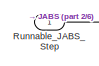
[diagram: root canvas - part 1/6, top center region]
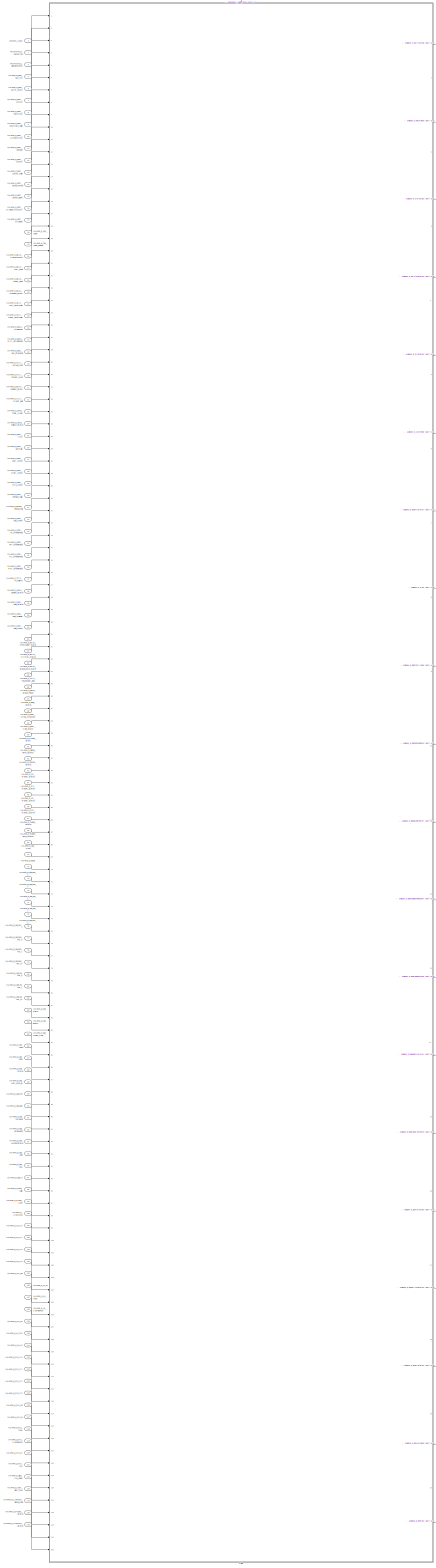
[diagram: root canvas - part 2/6, most of the canvas]
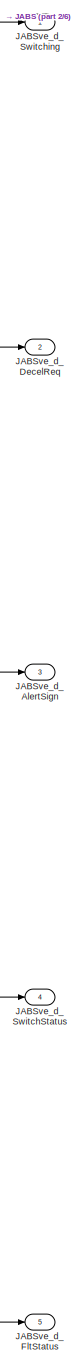
[diagram: root canvas - part 3/6, top right region]
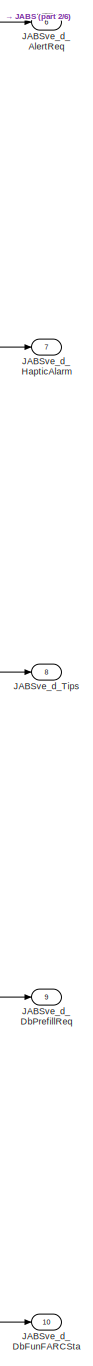
[diagram: root canvas - part 4/6, middle right region]
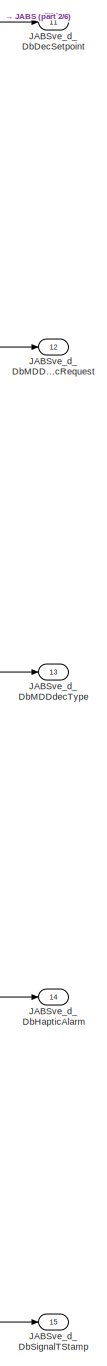
[diagram: root canvas - part 5/6, middle right region]
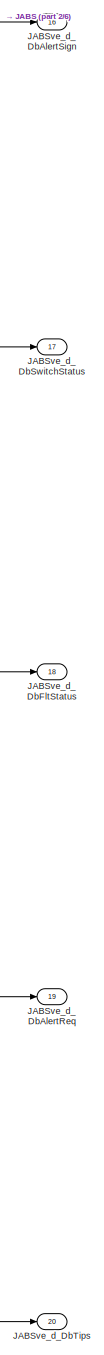
[diagram: root canvas - part 6/6, bottom right region]
MODEL slx_32ffdfda5d83
KIND model
CONFIG AbsTol = auto
CONFIG EnableMultiTasking = off
CONFIG FixedStep = 0.01
CONFIG MaxStep = auto
CONFIG MinStep = auto
CONFIG RelTol = 1e-3
CONFIG SampleTimeConstraint = Unconstrained
CONFIG Solver = FixedStepDiscrete
CONFIG SolverName = FixedStepDiscrete
CONFIG StartTime = 0.0
CONFIG StopTime = 10.0
BLOCK [Inport] FDMMve_d_JaFcnConf
  IconDisplay = Port number
  OutDataTypeStr = UInt16
  Port = 3
BLOCK [Inport] FDMMve_d_SignalTStamp
  IconDisplay = Port number
  OutDataTypeStr = UInt16
  Port = 4
BLOCK [Inport] IMAPva_d_obj_AEB
  IconDisplay = Port number
  OutDataTypeStr = UInt16
  Port = 95
  PortDimensions = 40
BLOCK [Inport] IMAPva_d_obj_BrakeLight
  IconDisplay = Port number
  OutDataTypeStr = UInt16
  Port = 93
  PortDimensions = 40
BLOCK [Inport] IMAPva_d_obj_ESA
  IconDisplay = Port number
  OutDataTypeStr = UInt16
  Port = 96
  PortDimensions = 40
BLOCK [Inport] IMAPva_d_obj_JA
  IconDisplay = Port number
  OutDataTypeStr = UInt16
  Port = 97
  PortDimensions = 40
BLOCK [Inport] IMAPva_d_obj_MotionStatus
  IconDisplay = Port number
  OutDataTypeStr = UInt16
  Port = 94
  PortDimensions = 40
BLOCK [Inport] IMAPva_d_obj_TurnLight
  IconDisplay = Port number
  OutDataTypeStr = UInt16
  Port = 92
  PortDimensions = 40
BLOCK [Inport] IMAPva_d_obj_cam_asso_id
  IconDisplay = Port number
  OutDataTypeStr = UInt16
  Port = 89
  PortDimensions = 40
BLOCK [Inport] IMAPva_d_obj_class
  IconDisplay = Port number
  OutDataTypeStr = UInt16
  Port = 86
  PortDimensions = 40
BLOCK [Inport] IMAPva_d_obj_fusion_type
  IconDisplay = Port number
  OutDataTypeStr = UInt16
  Port = 85
  PortDimensions = 40
BLOCK [Inport] IMAPva_d_obj_id
  IconDisplay = Port number
  OutDataTypeStr = UInt16
  Port = 70
  PortDimensions = 40
BLOCK [Inport] IMAPva_d_obj_lane
  IconDisplay = Port number
  OutDataTypeStr = UInt16
  Port = 87
  PortDimensions = 40
BLOCK [Inport] IMAPva_d_obj_status
  IconDisplay = Port number
  OutDataTypeStr = UInt16
  Port = 88
  PortDimensions = 40
BLOCK [Inport] IMAPva_g_obj_acc_x
  IconDisplay = Port number
  OutDataTypeStr = T_M_Nm_Float32
  Port = 75
  PortDimensions = 40
BLOCK [Inport] IMAPva_g_obj_acc_y
  IconDisplay = Port number
  OutDataTypeStr = T_M_Nm_Float32
  Port = 76
  PortDimensions = 40
BLOCK [Inport] IMAPva_g_obj_age
  IconDisplay = Port number
  OutDataTypeStr = T_M_Nm_Float32
  Port = 91
  PortDimensions = 40
BLOCK [Inport] IMAPva_g_obj_con
  IconDisplay = Port number
  OutDataTypeStr = T_M_Nm_Float32
  Port = 90
  PortDimensions = 40
BLOCK [Inport] IMAPva_g_obj_length
  IconDisplay = Port number
  OutDataTypeStr = T_M_Nm_Float32
  Port = 84
  PortDimensions = 40
BLOCK [Inport] IMAPva_g_obj_pos_var_x
  IconDisplay = Port number
  OutDataTypeStr = T_M_Nm_Float32
  Port = 77
  PortDimensions = 40
BLOCK [Inport] IMAPva_g_obj_pos_var_xy
  IconDisplay = Port number
  OutDataTypeStr = T_M_Nm_Float32
  Port = 79
  PortDimensions = 40
BLOCK [Inport] IMAPva_g_obj_pos_var_y
  IconDisplay = Port number
  OutDataTypeStr = T_M_Nm_Float32
  Port = 78
  PortDimensions = 40
BLOCK [Inport] IMAPva_g_obj_pos_x
  IconDisplay = Port number
  OutDataTypeStr = T_M_Nm_Float32
  Port = 71
  PortDimensions = 40
BLOCK [Inport] IMAPva_g_obj_pos_y
  IconDisplay = Port number
  OutDataTypeStr = T_M_Nm_Float32
  Port = 72
  PortDimensions = 40
BLOCK [Inport] IMAPva_g_obj_vel_var_x
  IconDisplay = Port number
  OutDataTypeStr = T_M_Nm_Float32
  Port = 80
  PortDimensions = 40
BLOCK [Inport] IMAPva_g_obj_vel_var_xy
  IconDisplay = Port number
  OutDataTypeStr = T_M_Nm_Float32
  Port = 82
  PortDimensions = 40
BLOCK [Inport] IMAPva_g_obj_vel_var_y
  IconDisplay = Port number
  OutDataTypeStr = T_M_Nm_Float32
  Port = 81
  PortDimensions = 40
BLOCK [Inport] IMAPva_g_obj_vel_x
  IconDisplay = Port number
  OutDataTypeStr = T_M_Nm_Float32
  Port = 73
  PortDimensions = 40
BLOCK [Inport] IMAPva_g_obj_vel_y
  IconDisplay = Port number
  OutDataTypeStr = T_M_Nm_Float32
  Port = 74
  PortDimensions = 40
BLOCK [Inport] IMAPva_g_obj_width
  IconDisplay = Port number
  OutDataTypeStr = T_M_Nm_Float32
  Port = 83
  PortDimensions = 40
BLOCK [Inport] IMAPve_d_ACU_Driver_Belt
  IconDisplay = Port number
  OutDataTypeStr = UInt16
  Port = 32
BLOCK [Inport] IMAPve_d_ACU_Passenger_Belt
  IconDisplay = Port number
  OutDataTypeStr = UInt16
  Port = 55
BLOCK [Inport] IMAPve_d_BCM_BrakeLamp_State
  IconDisplay = Port number
  OutDataTypeStr = UInt16
  Port = 54
BLOCK [Inport] IMAPve_d_BCM_CHMSL_Status
  IconDisplay = Port number
  OutDataTypeStr = UInt16
  Port = 53
BLOCK [Inport] IMAPve_d_BCM_FrontWiper_State
  IconDisplay = Port number
  OutDataTypeStr = UInt16
  Port = 52
BLOCK [Inport] IMAPve_d_BCM_HazardLamp
  IconDisplay = Port number
  OutDataTypeStr = UInt16
  Port = 20
BLOCK [Inport] IMAPve_d_BCM_Ignition_State
  IconDisplay = Port number
  OutDataTypeStr = UInt16
  Port = 31
BLOCK [Inport] IMAPve_d_BCM_Left_Light
  IconDisplay = Port number
  OutDataTypeStr = UInt16
  Port = 21
BLOCK [Inport] IMAPve_d_BCM_Opening_State
  IconDisplay = Port number
  OutDataTypeStr = UInt16
  Port = 23
BLOCK [Inport] IMAPve_d_BCM_Right_Light
  IconDisplay = Port number
  OutDataTypeStr = UInt16
  Port = 22
BLOCK [Inport] IMAPve_d_Brake_Pedal_Fault
  IconDisplay = Port number
  OutDataTypeStr = UInt16
  Port = 41
BLOCK [Inport] IMAPve_d_Camera_Signal_Fault
  IconDisplay = Port number
  OutDataTypeStr = UInt16
  Port = 124
BLOCK [Inport] IMAPve_d_Camera_Status
  IconDisplay = Port number
  OutDataTypeStr = UInt16
  Port = 126
BLOCK [Inport] IMAPve_d_ConsArea
  IconDisplay = Port number
  OutDataTypeStr = UInt16
  Port = 100
BLOCK [Inport] IMAPve_d_EMS_Brake_Pedal
  IconDisplay = Port number
  OutDataTypeStr = UInt16
  Port = 56
BLOCK [Inport] IMAPve_d_EMS_Engine_Status
  IconDisplay = Port number
  OutDataTypeStr = UInt16
  Port = 48
BLOCK [Inport] IMAPve_d_EPB_Status
  IconDisplay = Port number
  OutDataTypeStr = UInt16
  Port = 57
BLOCK [Inport] IMAPve_d_EPS_Error_State
  IconDisplay = Port number
  OutDataTypeStr = UInt16
  Port = 6
BLOCK [Inport] IMAPve_d_ESC_ABS_Active
  IconDisplay = Port number
  OutDataTypeStr = UInt16
  Port = 42
BLOCK [Inport] IMAPve_d_ESC_AEB_Active
  IconDisplay = Port number
  OutDataTypeStr = UInt16
  Port = 51
BLOCK [Inport] IMAPve_d_ESC_AEB_Available
  IconDisplay = Port number
  OutDataTypeStr = UInt16
  Port = 50
BLOCK [Inport] IMAPve_d_ESC_AEB_Status
  IconDisplay = Port number
  OutDataTypeStr = UInt16
  Port = 49
BLOCK [Inport] IMAPve_d_ESC_AlarmSig
  IconDisplay = Port number
  OutDataTypeStr = UInt16
  Port = 36
BLOCK [Inport] IMAPve_d_ESC_Drive_Direction
  IconDisplay = Port number
  OutDataTypeStr = UInt16
  Port = 58
BLOCK [Inport] IMAPve_d_ESC_ESC_Active
  IconDisplay = Port number
  OutDataTypeStr = UInt16
  Port = 37
BLOCK [Inport] IMAPve_d_ESC_FL_WheelPulVal
  IconDisplay = Port number
  OutDataTypeStr = UInt16
  Port = 43
BLOCK [Inport] IMAPve_d_ESC_FR_WheelPulVal
  IconDisplay = Port number
  OutDataTypeStr = UInt16
  Port = 44
BLOCK [Inport] IMAPve_d_ESC_Hold_State
  IconDisplay = Port number
  OutDataTypeStr = UInt16
  Port = 59
BLOCK [Inport] IMAPve_d_ESC_LonAcc_Valid
  IconDisplay = Port number
  OutDataTypeStr = UInt16
  Port = 13
BLOCK [Inport] IMAPve_d_ESC_MSR_Active
  IconDisplay = Port number
  OutDataTypeStr = UInt16
  Port = 38
BLOCK [Inport] IMAPve_d_ESC_OFF
  IconDisplay = Port number
  OutDataTypeStr = UInt16
  Port = 35
BLOCK [Inport] IMAPve_d_ESC_RL_WheelPulVal
  IconDisplay = Port number
  OutDataTypeStr = UInt16
  Port = 45
BLOCK [Inport] IMAPve_d_ESC_RR_WheelPulVal
  IconDisplay = Port number
  OutDataTypeStr = UInt16
  Port = 46
BLOCK [Inport] IMAPve_d_ESC_TCS_Active
  IconDisplay = Port number
  OutDataTypeStr = UInt16
  Port = 39
BLOCK [Inport] IMAPve_d_ESC_VehSpd_Valid
  IconDisplay = Port number
  OutDataTypeStr = UInt16
  Port = 40
BLOCK [Inport] IMAPve_d_ESC_Veh_Standstill
  IconDisplay = Port number
  OutDataTypeStr = UInt16
  Port = 28
BLOCK [Inport] IMAPve_d_ESC_YawRate_Valid
  IconDisplay = Port number
  OutDataTypeStr = UInt16
  Port = 9
BLOCK [Inport] IMAPve_d_Fusion_Status
  IconDisplay = Port number
  OutDataTypeStr = UInt16
  Port = 67
BLOCK [Inport] IMAPve_d_L0_LC
  IconDisplay = Port number
  OutDataTypeStr = UInt16
  Port = 111
BLOCK [Inport] IMAPve_d_L0_Q
  IconDisplay = Port number
  OutDataTypeStr = UInt16
  Port = 106
BLOCK [Inport] IMAPve_d_L0_Type
  IconDisplay = Port number
  OutDataTypeStr = UInt16
  Port = 107
BLOCK [Inport] IMAPve_d_LF_Radar_Status
  IconDisplay = Port number
  OutDataTypeStr = UInt16
  Port = 63
BLOCK [Inport] IMAPve_d_LR_Radar_Status
  IconDisplay = Port number
  OutDataTypeStr = UInt16
  Port = 65
BLOCK [Inport] IMAPve_d_Lane_Valid
  IconDisplay = Port number
  OutDataTypeStr = UInt16
  Port = 98
BLOCK [Inport] IMAPve_d_R0_Q
  IconDisplay = Port number
  OutDataTypeStr = UInt16
  Port = 117
BLOCK [Inport] IMAPve_d_R0_Type
  IconDisplay = Port number
  OutDataTypeStr = UInt16
  Port = 118
BLOCK [Inport] IMAPve_d_RF_Radar_Status
  IconDisplay = Port number
  OutDataTypeStr = UInt16
  Port = 64
BLOCK [Inport] IMAPve_d_RR_Radar_Status
  IconDisplay = Port number
  OutDataTypeStr = UInt16
  Port = 66
BLOCK [Inport] IMAPve_d_Radar_State
  IconDisplay = Port number
  OutDataTypeStr = UInt16
  Port = 60
BLOCK [Inport] IMAPve_d_Radar_Status
  IconDisplay = Port number
  OutDataTypeStr = UInt16
  Port = 125
BLOCK [Inport] IMAPve_d_Road_Type
  IconDisplay = Port number
  OutDataTypeStr = UInt16
  Port = 99
BLOCK [Inport] IMAPve_d_SCC_Left_SwitchSig
  IconDisplay = Port number
  OutDataTypeStr = UInt16
  Port = 24
BLOCK [Inport] IMAPve_d_SCC_Right_SwitchSig
  IconDisplay = Port number
  OutDataTypeStr = UInt16
  Port = 25
BLOCK [Inport] IMAPve_d_SWS_Failure_Status
  IconDisplay = Port number
  OutDataTypeStr = UInt16
  Port = 34
BLOCK [Inport] IMAPve_d_SWS_Fault_Code
  IconDisplay = Port number
  OutDataTypeStr = UInt16
  Port = 33
BLOCK [Inport] IMAPve_d_Sensor_Status
  IconDisplay = Port number
  OutDataTypeStr = UInt16
  Port = 62
BLOCK [Inport] IMAPve_d_Sign_ISA_Value
  IconDisplay = Port number
  OutDataTypeStr = UInt16
  Port = 122
BLOCK [Inport] IMAPve_d_Signal_Time_Stamp
  IconDisplay = Port number
  OutDataTypeStr = UInt16
  Port = 61
BLOCK [Inport] IMAPve_d_TCU_AT_Failure
  IconDisplay = Port number
  OutDataTypeStr = UInt16
  Port = 47
BLOCK [Inport] IMAPve_d_TCU_Actual_Gear
  IconDisplay = Port number
  OutDataTypeStr = UInt16
  Port = 29
BLOCK [Inport] IMAPve_d_TCU_Target_Gear
  IconDisplay = Port number
  OutDataTypeStr = UInt16
  Port = 30
BLOCK [Inport] IMAPve_d_TSR_Sign_Type
  IconDisplay = Port number
  OutDataTypeStr = UInt16
  Port = 123
BLOCK [Inport] IMAPve_d_obj_Num
  IconDisplay = Port number
  OutDataTypeStr = UInt16
  Port = 69
BLOCK [Inport] IMAPve_g_EMS_ACC_VirtualPedal
  IconDisplay = Port number
  OutDataTypeStr = T_M_Nm_Float32
  Port = 27
BLOCK [Inport] IMAPve_g_EMS_RealPedal
  IconDisplay = Port number
  OutDataTypeStr = T_M_Nm_Float32
  Port = 26
BLOCK [Inport] IMAPve_g_EPS_SW_Trq
  IconDisplay = Port number
  OutDataTypeStr = T_M_Nm_Float32
  Port = 5
BLOCK [Inport] IMAPve_g_ESC_Brake_Press
  IconDisplay = Port number
  OutDataTypeStr = T_M_Nm_Float32
  Port = 14
BLOCK [Inport] IMAPve_g_ESC_DySlope
  IconDisplay = Port number
  OutDataTypeStr = T_M_Nm_Float32
  Port = 17
BLOCK [Inport] IMAPve_g_ESC_DySlope_Accuracy
  IconDisplay = Port number
  OutDataTypeStr = T_M_Nm_Float32
  Port = 16
BLOCK [Inport] IMAPve_g_ESC_LatAcc
  IconDisplay = Port number
  OutDataTypeStr = T_M_Nm_Float32
  Port = 7
BLOCK [Inport] IMAPve_g_ESC_LonAcc
  IconDisplay = Port number
  OutDataTypeStr = T_M_Nm_Float32
  Port = 12
BLOCK [Inport] IMAPve_g_ESC_Static_Slope
  IconDisplay = Port number
  OutDataTypeStr = T_M_Nm_Float32
  Port = 15
BLOCK [Inport] IMAPve_g_ESC_UnYawRate
  IconDisplay = Port number
  OutDataTypeStr = T_M_Nm_Float32
  Port = 10
BLOCK [Inport] IMAPve_g_ESC_VehSpd
  IconDisplay = Port number
  OutDataTypeStr = T_M_Nm_Float32
  Port = 11
BLOCK [Inport] IMAPve_g_ESC_YawRate
  IconDisplay = Port number
  OutDataTypeStr = T_M_Nm_Float32
  Port = 8
BLOCK [Inport] IMAPve_g_Fusion_Time_Stamp
  IconDisplay = Port number
  OutDataTypeStr = T_M_Nm_Float32
  Port = 68
BLOCK [Inport] IMAPve_g_L0_C0
  IconDisplay = Port number
  OutDataTypeStr = T_M_Nm_Float32
  Port = 101
BLOCK [Inport] IMAPve_g_L0_C1
  IconDisplay = Port number
  OutDataTypeStr = T_M_Nm_Float32
  Port = 102
BLOCK [Inport] IMAPve_g_L0_C2
  IconDisplay = Port number
  OutDataTypeStr = T_M_Nm_Float32
  Port = 103
BLOCK [Inport] IMAPve_g_L0_C3
  IconDisplay = Port number
  OutDataTypeStr = T_M_Nm_Float32
  Port = 104
BLOCK [Inport] IMAPve_g_L0_Confidence
  IconDisplay = Port number
  OutDataTypeStr = T_M_Nm_Float32
  Port = 108
BLOCK [Inport] IMAPve_g_L0_TLC
  IconDisplay = Port number
  OutDataTypeStr = T_M_Nm_Float32
  Port = 110
BLOCK [Inport] IMAPve_g_L0_VR
  IconDisplay = Port number
  OutDataTypeStr = T_M_Nm_Float32
  Port = 105
BLOCK [Inport] IMAPve_g_L0_W
  IconDisplay = Port number
  OutDataTypeStr = T_M_Nm_Float32
  Port = 109
BLOCK [Inport] IMAPve_g_R0_C0
  IconDisplay = Port number
  OutDataTypeStr = T_M_Nm_Float32
  Port = 112
BLOCK [Inport] IMAPve_g_R0_C1
  IconDisplay = Port number
  OutDataTypeStr = T_M_Nm_Float32
  Port = 113
BLOCK [Inport] IMAPve_g_R0_C2
  IconDisplay = Port number
  OutDataTypeStr = T_M_Nm_Float32
  Port = 114
BLOCK [Inport] IMAPve_g_R0_C3
  IconDisplay = Port number
  OutDataTypeStr = T_M_Nm_Float32
  Port = 115
BLOCK [Inport] IMAPve_g_R0_Confidence
  IconDisplay = Port number
  OutDataTypeStr = T_M_Nm_Float32
  Port = 119
BLOCK [Inport] IMAPve_g_R0_TLC
  IconDisplay = Port number
  OutDataTypeStr = T_M_Nm_Float32
  Port = 121
BLOCK [Inport] IMAPve_g_R0_VR
  IconDisplay = Port number
  OutDataTypeStr = T_M_Nm_Float32
  Port = 116
BLOCK [Inport] IMAPve_g_R0_W
  IconDisplay = Port number
  OutDataTypeStr = T_M_Nm_Float32
  Port = 120
BLOCK [Inport] IMAPve_g_SW_Angle
  IconDisplay = Port number
  OutDataTypeStr = T_M_Nm_Float32
  Port = 18
BLOCK [Inport] IMAPve_g_SW_Angle_Speed
  IconDisplay = Port number
  OutDataTypeStr = T_M_Nm_Float32
  Port = 19
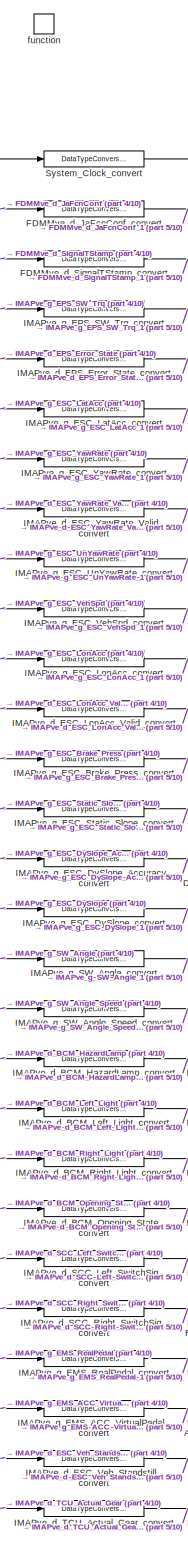
[diagram: JABS - part 1/10, top left region]
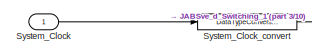
[diagram: JABS - part 2/10, top left region]
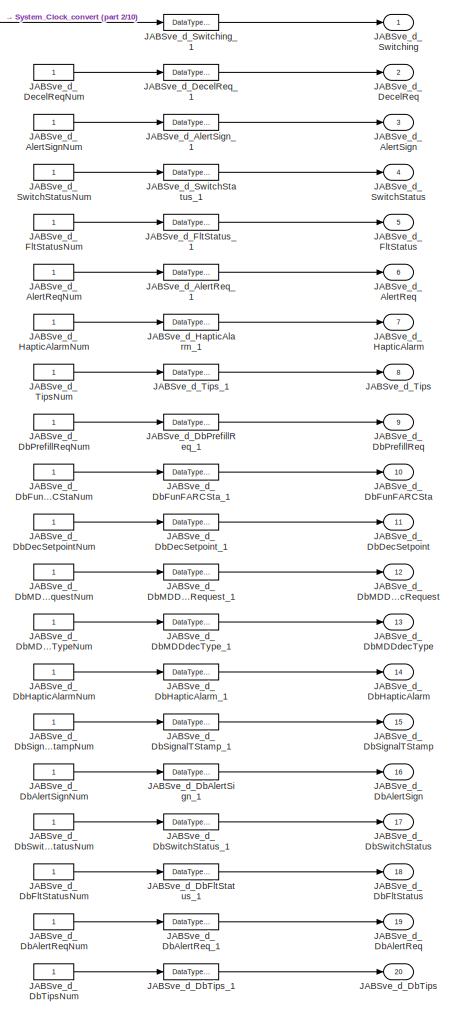
[diagram: JABS - part 3/10, top right region]
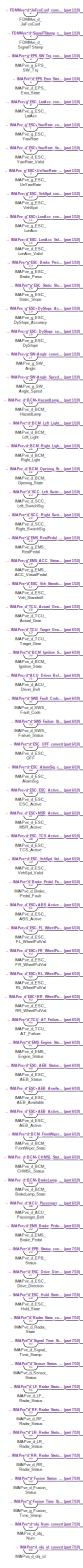
[diagram: JABS - part 4/10, top left region]
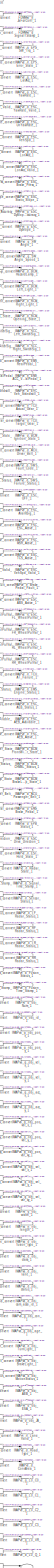
[diagram: JABS - part 5/10, left side, full height]
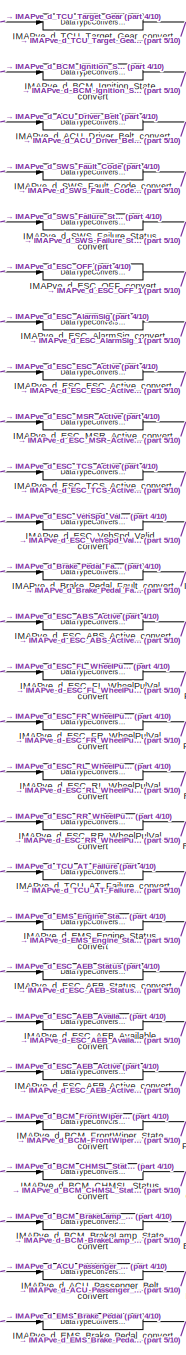
[diagram: JABS - part 6/10, middle left region]
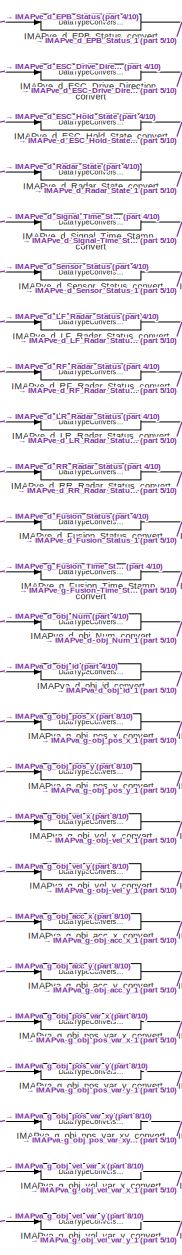
[diagram: JABS - part 7/10, middle left region]
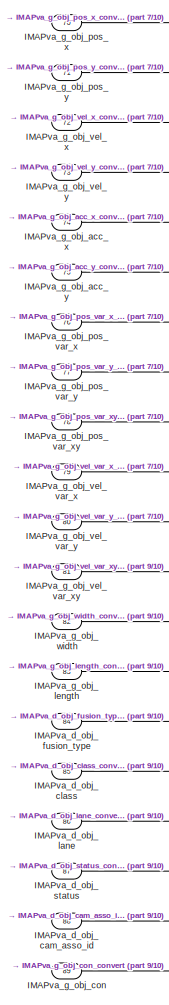
[diagram: JABS - part 8/10, middle left region]
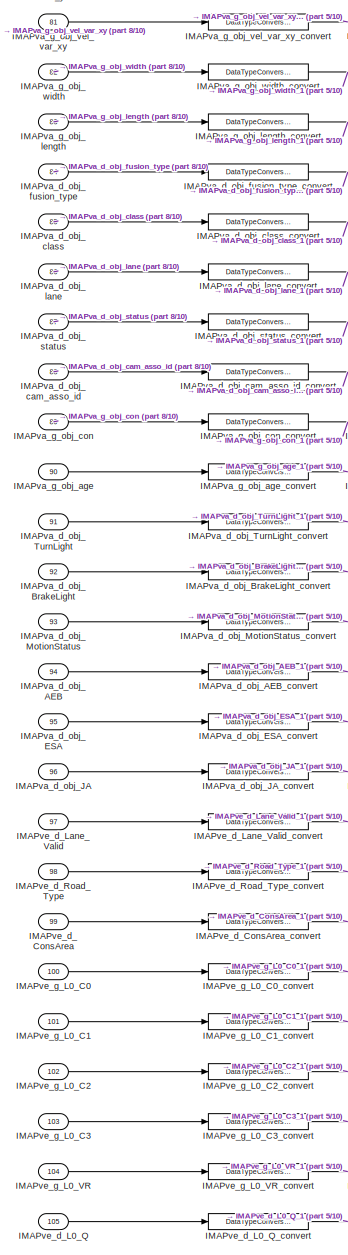
[diagram: JABS - part 9/10, bottom left region]
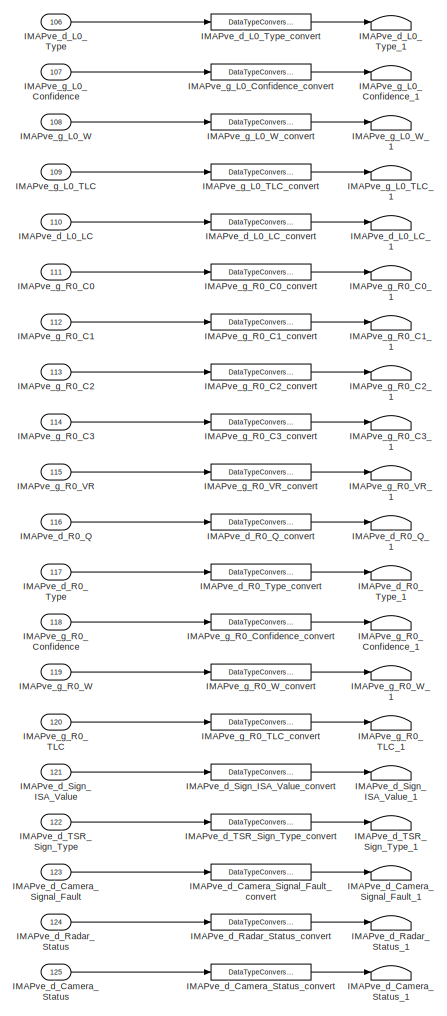
[diagram: JABS - part 10/10, bottom left region]
BLOCK [SubSystem] JABS
  Ports = [125, 20, 0, 1]
  RequestExecContextInheritance = off
  TreatAsAtomicUnit = on
BLOCK [Inport] JABS/FDMMve_d_JaFcnConf
  IconDisplay = Port number
  OutDataTypeStr = UInt16
  Port = 2
BLOCK [Terminator] JABS/FDMMve_d_JaFcnConf_1
BLOCK [DataTypeConversion] JABS/FDMMve_d_JaFcnConf_convert
  OutDataTypeStr = uint8
  RndMeth = Floor
  SaturateOnIntegerOverflow = off
BLOCK [Inport] JABS/FDMMve_d_SignalTStamp
  IconDisplay = Port number
  OutDataTypeStr = UInt16
  Port = 3
BLOCK [Terminator] JABS/FDMMve_d_SignalTStamp_1
BLOCK [DataTypeConversion] JABS/FDMMve_d_SignalTStamp_convert
  OutDataTypeStr = uint8
  RndMeth = Floor
  SaturateOnIntegerOverflow = off
BLOCK [Inport] JABS/IMAPva_d_obj_AEB
  IconDisplay = Port number
  OutDataTypeStr = UInt16
  Port = 94
  PortDimensions = 40
BLOCK [Terminator] JABS/IMAPva_d_obj_AEB_1
BLOCK [DataTypeConversion] JABS/IMAPva_d_obj_AEB_convert
  OutDataTypeStr = uint8
  RndMeth = Floor
  SaturateOnIntegerOverflow = off
BLOCK [Inport] JABS/IMAPva_d_obj_BrakeLight
  IconDisplay = Port number
  OutDataTypeStr = UInt16
  Port = 92
  PortDimensions = 40
BLOCK [Terminator] JABS/IMAPva_d_obj_BrakeLight_1
BLOCK [DataTypeConversion] JABS/IMAPva_d_obj_BrakeLight_convert
  OutDataTypeStr = uint8
  RndMeth = Floor
  SaturateOnIntegerOverflow = off
BLOCK [Inport] JABS/IMAPva_d_obj_ESA
  IconDisplay = Port number
  OutDataTypeStr = UInt16
  Port = 95
  PortDimensions = 40
BLOCK [Terminator] JABS/IMAPva_d_obj_ESA_1
BLOCK [DataTypeConversion] JABS/IMAPva_d_obj_ESA_convert
  OutDataTypeStr = uint8
  RndMeth = Floor
  SaturateOnIntegerOverflow = off
BLOCK [Inport] JABS/IMAPva_d_obj_JA
  IconDisplay = Port number
  OutDataTypeStr = UInt16
  Port = 96
  PortDimensions = 40
BLOCK [Terminator] JABS/IMAPva_d_obj_JA_1
BLOCK [DataTypeConversion] JABS/IMAPva_d_obj_JA_convert
  OutDataTypeStr = uint8
  RndMeth = Floor
  SaturateOnIntegerOverflow = off
BLOCK [Inport] JABS/IMAPva_d_obj_MotionStatus
  IconDisplay = Port number
  OutDataTypeStr = UInt16
  Port = 93
  PortDimensions = 40
BLOCK [Terminator] JABS/IMAPva_d_obj_MotionStatus_1
BLOCK [DataTypeConversion] JABS/IMAPva_d_obj_MotionStatus_convert
  OutDataTypeStr = uint8
  RndMeth = Floor
  SaturateOnIntegerOverflow = off
BLOCK [Inport] JABS/IMAPva_d_obj_TurnLight
  IconDisplay = Port number
  OutDataTypeStr = UInt16
  Port = 91
  PortDimensions = 40
BLOCK [Terminator] JABS/IMAPva_d_obj_TurnLight_1
BLOCK [DataTypeConversion] JABS/IMAPva_d_obj_TurnLight_convert
  OutDataTypeStr = uint8
  RndMeth = Floor
  SaturateOnIntegerOverflow = off
BLOCK [Inport] JABS/IMAPva_d_obj_cam_asso_id
  IconDisplay = Port number
  OutDataTypeStr = UInt16
  Port = 88
  PortDimensions = 40
BLOCK [Terminator] JABS/IMAPva_d_obj_cam_asso_id_1
BLOCK [DataTypeConversion] JABS/IMAPva_d_obj_cam_asso_id_convert
  OutDataTypeStr = uint8
  RndMeth = Floor
  SaturateOnIntegerOverflow = off
BLOCK [Inport] JABS/IMAPva_d_obj_class
  IconDisplay = Port number
  OutDataTypeStr = UInt16
  Port = 85
  PortDimensions = 40
BLOCK [Terminator] JABS/IMAPva_d_obj_class_1
BLOCK [DataTypeConversion] JABS/IMAPva_d_obj_class_convert
  OutDataTypeStr = uint8
  RndMeth = Floor
  SaturateOnIntegerOverflow = off
BLOCK [Inport] JABS/IMAPva_d_obj_fusion_type
  IconDisplay = Port number
  OutDataTypeStr = UInt16
  Port = 84
  PortDimensions = 40
BLOCK [Terminator] JABS/IMAPva_d_obj_fusion_type_1
BLOCK [DataTypeConversion] JABS/IMAPva_d_obj_fusion_type_convert
  OutDataTypeStr = uint8
  RndMeth = Floor
  SaturateOnIntegerOverflow = off
BLOCK [Inport] JABS/IMAPva_d_obj_id
  IconDisplay = Port number
  OutDataTypeStr = UInt16
  Port = 69
  PortDimensions = 40
BLOCK [Terminator] JABS/IMAPva_d_obj_id_1
BLOCK [DataTypeConversion] JABS/IMAPva_d_obj_id_convert
  OutDataTypeStr = uint8
  RndMeth = Floor
  SaturateOnIntegerOverflow = off
BLOCK [Inport] JABS/IMAPva_d_obj_lane
  IconDisplay = Port number
  OutDataTypeStr = UInt16
  Port = 86
  PortDimensions = 40
BLOCK [Terminator] JABS/IMAPva_d_obj_lane_1
BLOCK [DataTypeConversion] JABS/IMAPva_d_obj_lane_convert
  OutDataTypeStr = uint8
  RndMeth = Floor
  SaturateOnIntegerOverflow = off
BLOCK [Inport] JABS/IMAPva_d_obj_status
  IconDisplay = Port number
  OutDataTypeStr = UInt16
  Port = 87
  PortDimensions = 40
BLOCK [Terminator] JABS/IMAPva_d_obj_status_1
BLOCK [DataTypeConversion] JABS/IMAPva_d_obj_status_convert
  OutDataTypeStr = uint8
  RndMeth = Floor
  SaturateOnIntegerOverflow = off
BLOCK [Inport] JABS/IMAPva_g_obj_acc_x
  IconDisplay = Port number
  OutDataTypeStr = T_M_Nm_Float32
  Port = 74
  PortDimensions = 40
BLOCK [Terminator] JABS/IMAPva_g_obj_acc_x_1
BLOCK [DataTypeConversion] JABS/IMAPva_g_obj_acc_x_convert
  OutDataTypeStr = uint8
  RndMeth = Floor
  SaturateOnIntegerOverflow = off
BLOCK [Inport] JABS/IMAPva_g_obj_acc_y
  IconDisplay = Port number
  OutDataTypeStr = T_M_Nm_Float32
  Port = 75
  PortDimensions = 40
BLOCK [Terminator] JABS/IMAPva_g_obj_acc_y_1
BLOCK [DataTypeConversion] JABS/IMAPva_g_obj_acc_y_convert
  OutDataTypeStr = uint8
  RndMeth = Floor
  SaturateOnIntegerOverflow = off
BLOCK [Inport] JABS/IMAPva_g_obj_age
  IconDisplay = Port number
  OutDataTypeStr = T_M_Nm_Float32
  Port = 90
  PortDimensions = 40
BLOCK [Terminator] JABS/IMAPva_g_obj_age_1
BLOCK [DataTypeConversion] JABS/IMAPva_g_obj_age_convert
  OutDataTypeStr = uint8
  RndMeth = Floor
  SaturateOnIntegerOverflow = off
BLOCK [Inport] JABS/IMAPva_g_obj_con
  IconDisplay = Port number
  OutDataTypeStr = T_M_Nm_Float32
  Port = 89
  PortDimensions = 40
BLOCK [Terminator] JABS/IMAPva_g_obj_con_1
BLOCK [DataTypeConversion] JABS/IMAPva_g_obj_con_convert
  OutDataTypeStr = uint8
  RndMeth = Floor
  SaturateOnIntegerOverflow = off
BLOCK [Inport] JABS/IMAPva_g_obj_length
  IconDisplay = Port number
  OutDataTypeStr = T_M_Nm_Float32
  Port = 83
  PortDimensions = 40
BLOCK [Terminator] JABS/IMAPva_g_obj_length_1
BLOCK [DataTypeConversion] JABS/IMAPva_g_obj_length_convert
  OutDataTypeStr = uint8
  RndMeth = Floor
  SaturateOnIntegerOverflow = off
BLOCK [Inport] JABS/IMAPva_g_obj_pos_var_x
  IconDisplay = Port number
  OutDataTypeStr = T_M_Nm_Float32
  Port = 76
  PortDimensions = 40
BLOCK [Terminator] JABS/IMAPva_g_obj_pos_var_x_1
BLOCK [DataTypeConversion] JABS/IMAPva_g_obj_pos_var_x_convert
  OutDataTypeStr = uint8
  RndMeth = Floor
  SaturateOnIntegerOverflow = off
BLOCK [Inport] JABS/IMAPva_g_obj_pos_var_xy
  IconDisplay = Port number
  OutDataTypeStr = T_M_Nm_Float32
  Port = 78
  PortDimensions = 40
BLOCK [Terminator] JABS/IMAPva_g_obj_pos_var_xy_1
BLOCK [DataTypeConversion] JABS/IMAPva_g_obj_pos_var_xy_convert
  OutDataTypeStr = uint8
  RndMeth = Floor
  SaturateOnIntegerOverflow = off
BLOCK [Inport] JABS/IMAPva_g_obj_pos_var_y
  IconDisplay = Port number
  OutDataTypeStr = T_M_Nm_Float32
  Port = 77
  PortDimensions = 40
BLOCK [Terminator] JABS/IMAPva_g_obj_pos_var_y_1
BLOCK [DataTypeConversion] JABS/IMAPva_g_obj_pos_var_y_convert
  OutDataTypeStr = uint8
  RndMeth = Floor
  SaturateOnIntegerOverflow = off
BLOCK [Inport] JABS/IMAPva_g_obj_pos_x
  IconDisplay = Port number
  OutDataTypeStr = T_M_Nm_Float32
  Port = 70
  PortDimensions = 40
BLOCK [Terminator] JABS/IMAPva_g_obj_pos_x_1
BLOCK [DataTypeConversion] JABS/IMAPva_g_obj_pos_x_convert
  OutDataTypeStr = uint8
  RndMeth = Floor
  SaturateOnIntegerOverflow = off
BLOCK [Inport] JABS/IMAPva_g_obj_pos_y
  IconDisplay = Port number
  OutDataTypeStr = T_M_Nm_Float32
  Port = 71
  PortDimensions = 40
BLOCK [Terminator] JABS/IMAPva_g_obj_pos_y_1
BLOCK [DataTypeConversion] JABS/IMAPva_g_obj_pos_y_convert
  OutDataTypeStr = uint8
  RndMeth = Floor
  SaturateOnIntegerOverflow = off
BLOCK [Inport] JABS/IMAPva_g_obj_vel_var_x
  IconDisplay = Port number
  OutDataTypeStr = T_M_Nm_Float32
  Port = 79
  PortDimensions = 40
BLOCK [Terminator] JABS/IMAPva_g_obj_vel_var_x_1
BLOCK [DataTypeConversion] JABS/IMAPva_g_obj_vel_var_x_convert
  OutDataTypeStr = uint8
  RndMeth = Floor
  SaturateOnIntegerOverflow = off
BLOCK [Inport] JABS/IMAPva_g_obj_vel_var_xy
  IconDisplay = Port number
  OutDataTypeStr = T_M_Nm_Float32
  Port = 81
  PortDimensions = 40
BLOCK [Terminator] JABS/IMAPva_g_obj_vel_var_xy_1
BLOCK [DataTypeConversion] JABS/IMAPva_g_obj_vel_var_xy_convert
  OutDataTypeStr = uint8
  RndMeth = Floor
  SaturateOnIntegerOverflow = off
BLOCK [Inport] JABS/IMAPva_g_obj_vel_var_y
  IconDisplay = Port number
  OutDataTypeStr = T_M_Nm_Float32
  Port = 80
  PortDimensions = 40
BLOCK [Terminator] JABS/IMAPva_g_obj_vel_var_y_1
BLOCK [DataTypeConversion] JABS/IMAPva_g_obj_vel_var_y_convert
  OutDataTypeStr = uint8
  RndMeth = Floor
  SaturateOnIntegerOverflow = off
BLOCK [Inport] JABS/IMAPva_g_obj_vel_x
  IconDisplay = Port number
  OutDataTypeStr = T_M_Nm_Float32
  Port = 72
  PortDimensions = 40
BLOCK [Terminator] JABS/IMAPva_g_obj_vel_x_1
BLOCK [DataTypeConversion] JABS/IMAPva_g_obj_vel_x_convert
  OutDataTypeStr = uint8
  RndMeth = Floor
  SaturateOnIntegerOverflow = off
BLOCK [Inport] JABS/IMAPva_g_obj_vel_y
  IconDisplay = Port number
  OutDataTypeStr = T_M_Nm_Float32
  Port = 73
  PortDimensions = 40
BLOCK [Terminator] JABS/IMAPva_g_obj_vel_y_1
BLOCK [DataTypeConversion] JABS/IMAPva_g_obj_vel_y_convert
  OutDataTypeStr = uint8
  RndMeth = Floor
  SaturateOnIntegerOverflow = off
BLOCK [Inport] JABS/IMAPva_g_obj_width
  IconDisplay = Port number
  OutDataTypeStr = T_M_Nm_Float32
  Port = 82
  PortDimensions = 40
BLOCK [Terminator] JABS/IMAPva_g_obj_width_1
BLOCK [DataTypeConversion] JABS/IMAPva_g_obj_width_convert
  OutDataTypeStr = uint8
  RndMeth = Floor
  SaturateOnIntegerOverflow = off
BLOCK [Inport] JABS/IMAPve_d_ACU_Driver_Belt
  IconDisplay = Port number
  OutDataTypeStr = UInt16
  Port = 31
BLOCK [Terminator] JABS/IMAPve_d_ACU_Driver_Belt_1
BLOCK [DataTypeConversion] JABS/IMAPve_d_ACU_Driver_Belt_convert
  OutDataTypeStr = uint8
  RndMeth = Floor
  SaturateOnIntegerOverflow = off
BLOCK [Inport] JABS/IMAPve_d_ACU_Passenger_Belt
  IconDisplay = Port number
  OutDataTypeStr = UInt16
  Port = 54
BLOCK [Terminator] JABS/IMAPve_d_ACU_Passenger_Belt_1
BLOCK [DataTypeConversion] JABS/IMAPve_d_ACU_Passenger_Belt_convert
  OutDataTypeStr = uint8
  RndMeth = Floor
  SaturateOnIntegerOverflow = off
BLOCK [Inport] JABS/IMAPve_d_BCM_BrakeLamp_State
  IconDisplay = Port number
  OutDataTypeStr = UInt16
  Port = 53
BLOCK [Terminator] JABS/IMAPve_d_BCM_BrakeLamp_State_1
BLOCK [DataTypeConversion] JABS/IMAPve_d_BCM_BrakeLamp_State_convert
  OutDataTypeStr = uint8
  RndMeth = Floor
  SaturateOnIntegerOverflow = off
BLOCK [Inport] JABS/IMAPve_d_BCM_CHMSL_Status
  IconDisplay = Port number
  OutDataTypeStr = UInt16
  Port = 52
BLOCK [Terminator] JABS/IMAPve_d_BCM_CHMSL_Status_1
BLOCK [DataTypeConversion] JABS/IMAPve_d_BCM_CHMSL_Status_convert
  OutDataTypeStr = uint8
  RndMeth = Floor
  SaturateOnIntegerOverflow = off
BLOCK [Inport] JABS/IMAPve_d_BCM_FrontWiper_State
  IconDisplay = Port number
  OutDataTypeStr = UInt16
  Port = 51
BLOCK [Terminator] JABS/IMAPve_d_BCM_FrontWiper_State_1
BLOCK [DataTypeConversion] JABS/IMAPve_d_BCM_FrontWiper_State_convert
  OutDataTypeStr = uint8
  RndMeth = Floor
  SaturateOnIntegerOverflow = off
BLOCK [Inport] JABS/IMAPve_d_BCM_HazardLamp
  IconDisplay = Port number
  OutDataTypeStr = UInt16
  Port = 19
BLOCK [Terminator] JABS/IMAPve_d_BCM_HazardLamp_1
BLOCK [DataTypeConversion] JABS/IMAPve_d_BCM_HazardLamp_convert
  OutDataTypeStr = uint8
  RndMeth = Floor
  SaturateOnIntegerOverflow = off
BLOCK [Inport] JABS/IMAPve_d_BCM_Ignition_State
  IconDisplay = Port number
  OutDataTypeStr = UInt16
  Port = 30
BLOCK [Terminator] JABS/IMAPve_d_BCM_Ignition_State_1
BLOCK [DataTypeConversion] JABS/IMAPve_d_BCM_Ignition_State_convert
  OutDataTypeStr = uint8
  RndMeth = Floor
  SaturateOnIntegerOverflow = off
BLOCK [Inport] JABS/IMAPve_d_BCM_Left_Light
  IconDisplay = Port number
  OutDataTypeStr = UInt16
  Port = 20
BLOCK [Terminator] JABS/IMAPve_d_BCM_Left_Light_1
BLOCK [DataTypeConversion] JABS/IMAPve_d_BCM_Left_Light_convert
  OutDataTypeStr = uint8
  RndMeth = Floor
  SaturateOnIntegerOverflow = off
BLOCK [Inport] JABS/IMAPve_d_BCM_Opening_State
  IconDisplay = Port number
  OutDataTypeStr = UInt16
  Port = 22
BLOCK [Terminator] JABS/IMAPve_d_BCM_Opening_State_1
BLOCK [DataTypeConversion] JABS/IMAPve_d_BCM_Opening_State_convert
  OutDataTypeStr = uint8
  RndMeth = Floor
  SaturateOnIntegerOverflow = off
BLOCK [Inport] JABS/IMAPve_d_BCM_Right_Light
  IconDisplay = Port number
  OutDataTypeStr = UInt16
  Port = 21
BLOCK [Terminator] JABS/IMAPve_d_BCM_Right_Light_1
BLOCK [DataTypeConversion] JABS/IMAPve_d_BCM_Right_Light_convert
  OutDataTypeStr = uint8
  RndMeth = Floor
  SaturateOnIntegerOverflow = off
BLOCK [Inport] JABS/IMAPve_d_Brake_Pedal_Fault
  IconDisplay = Port number
  OutDataTypeStr = UInt16
  Port = 40
BLOCK [Terminator] JABS/IMAPve_d_Brake_Pedal_Fault_1
BLOCK [DataTypeConversion] JABS/IMAPve_d_Brake_Pedal_Fault_convert
  OutDataTypeStr = uint8
  RndMeth = Floor
  SaturateOnIntegerOverflow = off
BLOCK [Inport] JABS/IMAPve_d_Camera_Signal_Fault
  IconDisplay = Port number
  OutDataTypeStr = UInt16
  Port = 123
BLOCK [Terminator] JABS/IMAPve_d_Camera_Signal_Fault_1
BLOCK [DataTypeConversion] JABS/IMAPve_d_Camera_Signal_Fault_convert
  OutDataTypeStr = uint8
  RndMeth = Floor
  SaturateOnIntegerOverflow = off
BLOCK [Inport] JABS/IMAPve_d_Camera_Status
  IconDisplay = Port number
  OutDataTypeStr = UInt16
  Port = 125
BLOCK [Terminator] JABS/IMAPve_d_Camera_Status_1
BLOCK [DataTypeConversion] JABS/IMAPve_d_Camera_Status_convert
  OutDataTypeStr = uint8
  RndMeth = Floor
  SaturateOnIntegerOverflow = off
BLOCK [Inport] JABS/IMAPve_d_ConsArea
  IconDisplay = Port number
  OutDataTypeStr = UInt16
  Port = 99
BLOCK [Terminator] JABS/IMAPve_d_ConsArea_1
BLOCK [DataTypeConversion] JABS/IMAPve_d_ConsArea_convert
  OutDataTypeStr = uint8
  RndMeth = Floor
  SaturateOnIntegerOverflow = off
BLOCK [Inport] JABS/IMAPve_d_EMS_Brake_Pedal
  IconDisplay = Port number
  OutDataTypeStr = UInt16
  Port = 55
BLOCK [Terminator] JABS/IMAPve_d_EMS_Brake_Pedal_1
BLOCK [DataTypeConversion] JABS/IMAPve_d_EMS_Brake_Pedal_convert
  OutDataTypeStr = uint8
  RndMeth = Floor
  SaturateOnIntegerOverflow = off
BLOCK [Inport] JABS/IMAPve_d_EMS_Engine_Status
  IconDisplay = Port number
  OutDataTypeStr = UInt16
  Port = 47
BLOCK [Terminator] JABS/IMAPve_d_EMS_Engine_Status_1
BLOCK [DataTypeConversion] JABS/IMAPve_d_EMS_Engine_Status_convert
  OutDataTypeStr = uint8
  RndMeth = Floor
  SaturateOnIntegerOverflow = off
BLOCK [Inport] JABS/IMAPve_d_EPB_Status
  IconDisplay = Port number
  OutDataTypeStr = UInt16
  Port = 56
BLOCK [Terminator] JABS/IMAPve_d_EPB_Status_1
BLOCK [DataTypeConversion] JABS/IMAPve_d_EPB_Status_convert
  OutDataTypeStr = uint8
  RndMeth = Floor
  SaturateOnIntegerOverflow = off
BLOCK [Inport] JABS/IMAPve_d_EPS_Error_State
  IconDisplay = Port number
  OutDataTypeStr = UInt16
  Port = 5
BLOCK [Terminator] JABS/IMAPve_d_EPS_Error_State_1
BLOCK [DataTypeConversion] JABS/IMAPve_d_EPS_Error_State_convert
  OutDataTypeStr = uint8
  RndMeth = Floor
  SaturateOnIntegerOverflow = off
BLOCK [Inport] JABS/IMAPve_d_ESC_ABS_Active
  IconDisplay = Port number
  OutDataTypeStr = UInt16
  Port = 41
BLOCK [Terminator] JABS/IMAPve_d_ESC_ABS_Active_1
BLOCK [DataTypeConversion] JABS/IMAPve_d_ESC_ABS_Active_convert
  OutDataTypeStr = uint8
  RndMeth = Floor
  SaturateOnIntegerOverflow = off
BLOCK [Inport] JABS/IMAPve_d_ESC_AEB_Active
  IconDisplay = Port number
  OutDataTypeStr = UInt16
  Port = 50
BLOCK [Terminator] JABS/IMAPve_d_ESC_AEB_Active_1
BLOCK [DataTypeConversion] JABS/IMAPve_d_ESC_AEB_Active_convert
  OutDataTypeStr = uint8
  RndMeth = Floor
  SaturateOnIntegerOverflow = off
BLOCK [Inport] JABS/IMAPve_d_ESC_AEB_Available
  IconDisplay = Port number
  OutDataTypeStr = UInt16
  Port = 49
BLOCK [Terminator] JABS/IMAPve_d_ESC_AEB_Available_1
BLOCK [DataTypeConversion] JABS/IMAPve_d_ESC_AEB_Available_convert
  OutDataTypeStr = uint8
  RndMeth = Floor
  SaturateOnIntegerOverflow = off
BLOCK [Inport] JABS/IMAPve_d_ESC_AEB_Status
  IconDisplay = Port number
  OutDataTypeStr = UInt16
  Port = 48
BLOCK [Terminator] JABS/IMAPve_d_ESC_AEB_Status_1
BLOCK [DataTypeConversion] JABS/IMAPve_d_ESC_AEB_Status_convert
  OutDataTypeStr = uint8
  RndMeth = Floor
  SaturateOnIntegerOverflow = off
BLOCK [Inport] JABS/IMAPve_d_ESC_AlarmSig
  IconDisplay = Port number
  OutDataTypeStr = UInt16
  Port = 35
BLOCK [Terminator] JABS/IMAPve_d_ESC_AlarmSig_1
BLOCK [DataTypeConversion] JABS/IMAPve_d_ESC_AlarmSig_convert
  OutDataTypeStr = uint8
  RndMeth = Floor
  SaturateOnIntegerOverflow = off
BLOCK [Inport] JABS/IMAPve_d_ESC_Drive_Direction
  IconDisplay = Port number
  OutDataTypeStr = UInt16
  Port = 57
BLOCK [Terminator] JABS/IMAPve_d_ESC_Drive_Direction_1
BLOCK [DataTypeConversion] JABS/IMAPve_d_ESC_Drive_Direction_convert
  OutDataTypeStr = uint8
  RndMeth = Floor
  SaturateOnIntegerOverflow = off
BLOCK [Inport] JABS/IMAPve_d_ESC_ESC_Active
  IconDisplay = Port number
  OutDataTypeStr = UInt16
  Port = 36
BLOCK [Terminator] JABS/IMAPve_d_ESC_ESC_Active_1
BLOCK [DataTypeConversion] JABS/IMAPve_d_ESC_ESC_Active_convert
  OutDataTypeStr = uint8
  RndMeth = Floor
  SaturateOnIntegerOverflow = off
BLOCK [Inport] JABS/IMAPve_d_ESC_FL_WheelPulVal
  IconDisplay = Port number
  OutDataTypeStr = UInt16
  Port = 42
BLOCK [Terminator] JABS/IMAPve_d_ESC_FL_WheelPulVal_1
BLOCK [DataTypeConversion] JABS/IMAPve_d_ESC_FL_WheelPulVal_convert
  OutDataTypeStr = uint8
  RndMeth = Floor
  SaturateOnIntegerOverflow = off
BLOCK [Inport] JABS/IMAPve_d_ESC_FR_WheelPulVal
  IconDisplay = Port number
  OutDataTypeStr = UInt16
  Port = 43
BLOCK [Terminator] JABS/IMAPve_d_ESC_FR_WheelPulVal_1
BLOCK [DataTypeConversion] JABS/IMAPve_d_ESC_FR_WheelPulVal_convert
  OutDataTypeStr = uint8
  RndMeth = Floor
  SaturateOnIntegerOverflow = off
BLOCK [Inport] JABS/IMAPve_d_ESC_Hold_State
  IconDisplay = Port number
  OutDataTypeStr = UInt16
  Port = 58
BLOCK [Terminator] JABS/IMAPve_d_ESC_Hold_State_1
BLOCK [DataTypeConversion] JABS/IMAPve_d_ESC_Hold_State_convert
  OutDataTypeStr = uint8
  RndMeth = Floor
  SaturateOnIntegerOverflow = off
BLOCK [Inport] JABS/IMAPve_d_ESC_LonAcc_Valid
  IconDisplay = Port number
  OutDataTypeStr = UInt16
  Port = 12
BLOCK [Terminator] JABS/IMAPve_d_ESC_LonAcc_Valid_1
BLOCK [DataTypeConversion] JABS/IMAPve_d_ESC_LonAcc_Valid_convert
  OutDataTypeStr = uint8
  RndMeth = Floor
  SaturateOnIntegerOverflow = off
BLOCK [Inport] JABS/IMAPve_d_ESC_MSR_Active
  IconDisplay = Port number
  OutDataTypeStr = UInt16
  Port = 37
BLOCK [Terminator] JABS/IMAPve_d_ESC_MSR_Active_1
BLOCK [DataTypeConversion] JABS/IMAPve_d_ESC_MSR_Active_convert
  OutDataTypeStr = uint8
  RndMeth = Floor
  SaturateOnIntegerOverflow = off
BLOCK [Inport] JABS/IMAPve_d_ESC_OFF
  IconDisplay = Port number
  OutDataTypeStr = UInt16
  Port = 34
BLOCK [Terminator] JABS/IMAPve_d_ESC_OFF_1
BLOCK [DataTypeConversion] JABS/IMAPve_d_ESC_OFF_convert
  OutDataTypeStr = uint8
  RndMeth = Floor
  SaturateOnIntegerOverflow = off
BLOCK [Inport] JABS/IMAPve_d_ESC_RL_WheelPulVal
  IconDisplay = Port number
  OutDataTypeStr = UInt16
  Port = 44
BLOCK [Terminator] JABS/IMAPve_d_ESC_RL_WheelPulVal_1
BLOCK [DataTypeConversion] JABS/IMAPve_d_ESC_RL_WheelPulVal_convert
  OutDataTypeStr = uint8
  RndMeth = Floor
  SaturateOnIntegerOverflow = off
BLOCK [Inport] JABS/IMAPve_d_ESC_RR_WheelPulVal
  IconDisplay = Port number
  OutDataTypeStr = UInt16
  Port = 45
BLOCK [Terminator] JABS/IMAPve_d_ESC_RR_WheelPulVal_1
BLOCK [DataTypeConversion] JABS/IMAPve_d_ESC_RR_WheelPulVal_convert
  OutDataTypeStr = uint8
  RndMeth = Floor
  SaturateOnIntegerOverflow = off
BLOCK [Inport] JABS/IMAPve_d_ESC_TCS_Active
  IconDisplay = Port number
  OutDataTypeStr = UInt16
  Port = 38
BLOCK [Terminator] JABS/IMAPve_d_ESC_TCS_Active_1
BLOCK [DataTypeConversion] JABS/IMAPve_d_ESC_TCS_Active_convert
  OutDataTypeStr = uint8
  RndMeth = Floor
  SaturateOnIntegerOverflow = off
BLOCK [Inport] JABS/IMAPve_d_ESC_VehSpd_Valid
  IconDisplay = Port number
  OutDataTypeStr = UInt16
  Port = 39
BLOCK [Terminator] JABS/IMAPve_d_ESC_VehSpd_Valid_1
BLOCK [DataTypeConversion] JABS/IMAPve_d_ESC_VehSpd_Valid_convert
  OutDataTypeStr = uint8
  RndMeth = Floor
  SaturateOnIntegerOverflow = off
BLOCK [Inport] JABS/IMAPve_d_ESC_Veh_Standstill
  IconDisplay = Port number
  OutDataTypeStr = UInt16
  Port = 27
BLOCK [Terminator] JABS/IMAPve_d_ESC_Veh_Standstill_1
BLOCK [DataTypeConversion] JABS/IMAPve_d_ESC_Veh_Standstill_convert
  OutDataTypeStr = uint8
  RndMeth = Floor
  SaturateOnIntegerOverflow = off
BLOCK [Inport] JABS/IMAPve_d_ESC_YawRate_Valid
  IconDisplay = Port number
  OutDataTypeStr = UInt16
  Port = 8
BLOCK [Terminator] JABS/IMAPve_d_ESC_YawRate_Valid_1
BLOCK [DataTypeConversion] JABS/IMAPve_d_ESC_YawRate_Valid_convert
  OutDataTypeStr = uint8
  RndMeth = Floor
  SaturateOnIntegerOverflow = off
BLOCK [Inport] JABS/IMAPve_d_Fusion_Status
  IconDisplay = Port number
  OutDataTypeStr = UInt16
  Port = 66
BLOCK [Terminator] JABS/IMAPve_d_Fusion_Status_1
BLOCK [DataTypeConversion] JABS/IMAPve_d_Fusion_Status_convert
  OutDataTypeStr = uint8
  RndMeth = Floor
  SaturateOnIntegerOverflow = off
BLOCK [Inport] JABS/IMAPve_d_L0_LC
  IconDisplay = Port number
  OutDataTypeStr = UInt16
  Port = 110
BLOCK [Terminator] JABS/IMAPve_d_L0_LC_1
BLOCK [DataTypeConversion] JABS/IMAPve_d_L0_LC_convert
  OutDataTypeStr = uint8
  RndMeth = Floor
  SaturateOnIntegerOverflow = off
BLOCK [Inport] JABS/IMAPve_d_L0_Q
  IconDisplay = Port number
  OutDataTypeStr = UInt16
  Port = 105
BLOCK [Terminator] JABS/IMAPve_d_L0_Q_1
BLOCK [DataTypeConversion] JABS/IMAPve_d_L0_Q_convert
  OutDataTypeStr = uint8
  RndMeth = Floor
  SaturateOnIntegerOverflow = off
BLOCK [Inport] JABS/IMAPve_d_L0_Type
  IconDisplay = Port number
  OutDataTypeStr = UInt16
  Port = 106
BLOCK [Terminator] JABS/IMAPve_d_L0_Type_1
BLOCK [DataTypeConversion] JABS/IMAPve_d_L0_Type_convert
  OutDataTypeStr = uint8
  RndMeth = Floor
  SaturateOnIntegerOverflow = off
BLOCK [Inport] JABS/IMAPve_d_LF_Radar_Status
  IconDisplay = Port number
  OutDataTypeStr = UInt16
  Port = 62
BLOCK [Terminator] JABS/IMAPve_d_LF_Radar_Status_1
BLOCK [DataTypeConversion] JABS/IMAPve_d_LF_Radar_Status_convert
  OutDataTypeStr = uint8
  RndMeth = Floor
  SaturateOnIntegerOverflow = off
BLOCK [Inport] JABS/IMAPve_d_LR_Radar_Status
  IconDisplay = Port number
  OutDataTypeStr = UInt16
  Port = 64
BLOCK [Terminator] JABS/IMAPve_d_LR_Radar_Status_1
BLOCK [DataTypeConversion] JABS/IMAPve_d_LR_Radar_Status_convert
  OutDataTypeStr = uint8
  RndMeth = Floor
  SaturateOnIntegerOverflow = off
BLOCK [Inport] JABS/IMAPve_d_Lane_Valid
  IconDisplay = Port number
  OutDataTypeStr = UInt16
  Port = 97
BLOCK [Terminator] JABS/IMAPve_d_Lane_Valid_1
BLOCK [DataTypeConversion] JABS/IMAPve_d_Lane_Valid_convert
  OutDataTypeStr = uint8
  RndMeth = Floor
  SaturateOnIntegerOverflow = off
BLOCK [Inport] JABS/IMAPve_d_R0_Q
  IconDisplay = Port number
  OutDataTypeStr = UInt16
  Port = 116
BLOCK [Terminator] JABS/IMAPve_d_R0_Q_1
BLOCK [DataTypeConversion] JABS/IMAPve_d_R0_Q_convert
  OutDataTypeStr = uint8
  RndMeth = Floor
  SaturateOnIntegerOverflow = off
BLOCK [Inport] JABS/IMAPve_d_R0_Type
  IconDisplay = Port number
  OutDataTypeStr = UInt16
  Port = 117
BLOCK [Terminator] JABS/IMAPve_d_R0_Type_1
BLOCK [DataTypeConversion] JABS/IMAPve_d_R0_Type_convert
  OutDataTypeStr = uint8
  RndMeth = Floor
  SaturateOnIntegerOverflow = off
BLOCK [Inport] JABS/IMAPve_d_RF_Radar_Status
  IconDisplay = Port number
  OutDataTypeStr = UInt16
  Port = 63
BLOCK [Terminator] JABS/IMAPve_d_RF_Radar_Status_1
BLOCK [DataTypeConversion] JABS/IMAPve_d_RF_Radar_Status_convert
  OutDataTypeStr = uint8
  RndMeth = Floor
  SaturateOnIntegerOverflow = off
BLOCK [Inport] JABS/IMAPve_d_RR_Radar_Status
  IconDisplay = Port number
  OutDataTypeStr = UInt16
  Port = 65
BLOCK [Terminator] JABS/IMAPve_d_RR_Radar_Status_1
BLOCK [DataTypeConversion] JABS/IMAPve_d_RR_Radar_Status_convert
  OutDataTypeStr = uint8
  RndMeth = Floor
  SaturateOnIntegerOverflow = off
BLOCK [Inport] JABS/IMAPve_d_Radar_State
  IconDisplay = Port number
  OutDataTypeStr = UInt16
  Port = 59
BLOCK [Terminator] JABS/IMAPve_d_Radar_State_1
BLOCK [DataTypeConversion] JABS/IMAPve_d_Radar_State_convert
  OutDataTypeStr = uint8
  RndMeth = Floor
  SaturateOnIntegerOverflow = off
BLOCK [Inport] JABS/IMAPve_d_Radar_Status
  IconDisplay = Port number
  OutDataTypeStr = UInt16
  Port = 124
BLOCK [Terminator] JABS/IMAPve_d_Radar_Status_1
BLOCK [DataTypeConversion] JABS/IMAPve_d_Radar_Status_convert
  OutDataTypeStr = uint8
  RndMeth = Floor
  SaturateOnIntegerOverflow = off
BLOCK [Inport] JABS/IMAPve_d_Road_Type
  IconDisplay = Port number
  OutDataTypeStr = UInt16
  Port = 98
BLOCK [Terminator] JABS/IMAPve_d_Road_Type_1
BLOCK [DataTypeConversion] JABS/IMAPve_d_Road_Type_convert
  OutDataTypeStr = uint8
  RndMeth = Floor
  SaturateOnIntegerOverflow = off
BLOCK [Inport] JABS/IMAPve_d_SCC_Left_SwitchSig
  IconDisplay = Port number
  OutDataTypeStr = UInt16
  Port = 23
BLOCK [Terminator] JABS/IMAPve_d_SCC_Left_SwitchSig_1
BLOCK [DataTypeConversion] JABS/IMAPve_d_SCC_Left_SwitchSig_convert
  OutDataTypeStr = uint8
  RndMeth = Floor
  SaturateOnIntegerOverflow = off
BLOCK [Inport] JABS/IMAPve_d_SCC_Right_SwitchSig
  IconDisplay = Port number
  OutDataTypeStr = UInt16
  Port = 24
BLOCK [Terminator] JABS/IMAPve_d_SCC_Right_SwitchSig_1
BLOCK [DataTypeConversion] JABS/IMAPve_d_SCC_Right_SwitchSig_convert
  OutDataTypeStr = uint8
  RndMeth = Floor
  SaturateOnIntegerOverflow = off
BLOCK [Inport] JABS/IMAPve_d_SWS_Failure_Status
  IconDisplay = Port number
  OutDataTypeStr = UInt16
  Port = 33
BLOCK [Terminator] JABS/IMAPve_d_SWS_Failure_Status_1
BLOCK [DataTypeConversion] JABS/IMAPve_d_SWS_Failure_Status_convert
  OutDataTypeStr = uint8
  RndMeth = Floor
  SaturateOnIntegerOverflow = off
BLOCK [Inport] JABS/IMAPve_d_SWS_Fault_Code
  IconDisplay = Port number
  OutDataTypeStr = UInt16
  Port = 32
BLOCK [Terminator] JABS/IMAPve_d_SWS_Fault_Code_1
BLOCK [DataTypeConversion] JABS/IMAPve_d_SWS_Fault_Code_convert
  OutDataTypeStr = uint8
  RndMeth = Floor
  SaturateOnIntegerOverflow = off
BLOCK [Inport] JABS/IMAPve_d_Sensor_Status
  IconDisplay = Port number
  OutDataTypeStr = UInt16
  Port = 61
BLOCK [Terminator] JABS/IMAPve_d_Sensor_Status_1
BLOCK [DataTypeConversion] JABS/IMAPve_d_Sensor_Status_convert
  OutDataTypeStr = uint8
  RndMeth = Floor
  SaturateOnIntegerOverflow = off
BLOCK [Inport] JABS/IMAPve_d_Sign_ISA_Value
  IconDisplay = Port number
  OutDataTypeStr = UInt16
  Port = 121
BLOCK [Terminator] JABS/IMAPve_d_Sign_ISA_Value_1
BLOCK [DataTypeConversion] JABS/IMAPve_d_Sign_ISA_Value_convert
  OutDataTypeStr = uint8
  RndMeth = Floor
  SaturateOnIntegerOverflow = off
BLOCK [Inport] JABS/IMAPve_d_Signal_Time_Stamp
  IconDisplay = Port number
  OutDataTypeStr = UInt16
  Port = 60
BLOCK [Terminator] JABS/IMAPve_d_Signal_Time_Stamp_1
BLOCK [DataTypeConversion] JABS/IMAPve_d_Signal_Time_Stamp_convert
  OutDataTypeStr = uint8
  RndMeth = Floor
  SaturateOnIntegerOverflow = off
BLOCK [Inport] JABS/IMAPve_d_TCU_AT_Failure
  IconDisplay = Port number
  OutDataTypeStr = UInt16
  Port = 46
BLOCK [Terminator] JABS/IMAPve_d_TCU_AT_Failure_1
BLOCK [DataTypeConversion] JABS/IMAPve_d_TCU_AT_Failure_convert
  OutDataTypeStr = uint8
  RndMeth = Floor
  SaturateOnIntegerOverflow = off
BLOCK [Inport] JABS/IMAPve_d_TCU_Actual_Gear
  IconDisplay = Port number
  OutDataTypeStr = UInt16
  Port = 28
BLOCK [Terminator] JABS/IMAPve_d_TCU_Actual_Gear_1
BLOCK [DataTypeConversion] JABS/IMAPve_d_TCU_Actual_Gear_convert
  OutDataTypeStr = uint8
  RndMeth = Floor
  SaturateOnIntegerOverflow = off
BLOCK [Inport] JABS/IMAPve_d_TCU_Target_Gear
  IconDisplay = Port number
  OutDataTypeStr = UInt16
  Port = 29
BLOCK [Terminator] JABS/IMAPve_d_TCU_Target_Gear_1
BLOCK [DataTypeConversion] JABS/IMAPve_d_TCU_Target_Gear_convert
  OutDataTypeStr = uint8
  RndMeth = Floor
  SaturateOnIntegerOverflow = off
BLOCK [Inport] JABS/IMAPve_d_TSR_Sign_Type
  IconDisplay = Port number
  OutDataTypeStr = UInt16
  Port = 122
BLOCK [Terminator] JABS/IMAPve_d_TSR_Sign_Type_1
BLOCK [DataTypeConversion] JABS/IMAPve_d_TSR_Sign_Type_convert
  OutDataTypeStr = uint8
  RndMeth = Floor
  SaturateOnIntegerOverflow = off
BLOCK [Inport] JABS/IMAPve_d_obj_Num
  IconDisplay = Port number
  OutDataTypeStr = UInt16
  Port = 68
BLOCK [Terminator] JABS/IMAPve_d_obj_Num_1
BLOCK [DataTypeConversion] JABS/IMAPve_d_obj_Num_convert
  OutDataTypeStr = uint8
  RndMeth = Floor
  SaturateOnIntegerOverflow = off
BLOCK [Inport] JABS/IMAPve_g_EMS_ACC_VirtualPedal
  IconDisplay = Port number
  OutDataTypeStr = T_M_Nm_Float32
  Port = 26
BLOCK [Terminator] JABS/IMAPve_g_EMS_ACC_VirtualPedal_1
BLOCK [DataTypeConversion] JABS/IMAPve_g_EMS_ACC_VirtualPedal_convert
  OutDataTypeStr = uint8
  RndMeth = Floor
  SaturateOnIntegerOverflow = off
BLOCK [Inport] JABS/IMAPve_g_EMS_RealPedal
  IconDisplay = Port number
  OutDataTypeStr = T_M_Nm_Float32
  Port = 25
BLOCK [Terminator] JABS/IMAPve_g_EMS_RealPedal_1
BLOCK [DataTypeConversion] JABS/IMAPve_g_EMS_RealPedal_convert
  OutDataTypeStr = uint8
  RndMeth = Floor
  SaturateOnIntegerOverflow = off
BLOCK [Inport] JABS/IMAPve_g_EPS_SW_Trq
  IconDisplay = Port number
  OutDataTypeStr = T_M_Nm_Float32
  Port = 4
BLOCK [Terminator] JABS/IMAPve_g_EPS_SW_Trq_1
BLOCK [DataTypeConversion] JABS/IMAPve_g_EPS_SW_Trq_convert
  OutDataTypeStr = uint8
  RndMeth = Floor
  SaturateOnIntegerOverflow = off
BLOCK [Inport] JABS/IMAPve_g_ESC_Brake_Press
  IconDisplay = Port number
  OutDataTypeStr = T_M_Nm_Float32
  Port = 13
BLOCK [Terminator] JABS/IMAPve_g_ESC_Brake_Press_1
BLOCK [DataTypeConversion] JABS/IMAPve_g_ESC_Brake_Press_convert
  OutDataTypeStr = uint8
  RndMeth = Floor
  SaturateOnIntegerOverflow = off
BLOCK [Inport] JABS/IMAPve_g_ESC_DySlope
  IconDisplay = Port number
  OutDataTypeStr = T_M_Nm_Float32
  Port = 16
BLOCK [Terminator] JABS/IMAPve_g_ESC_DySlope_1
BLOCK [Inport] JABS/IMAPve_g_ESC_DySlope_Accuracy
  IconDisplay = Port number
  OutDataTypeStr = T_M_Nm_Float32
  Port = 15
BLOCK [Terminator] JABS/IMAPve_g_ESC_DySlope_Accuracy_1
BLOCK [DataTypeConversion] JABS/IMAPve_g_ESC_DySlope_Accuracy_convert
  OutDataTypeStr = uint8
  RndMeth = Floor
  SaturateOnIntegerOverflow = off
BLOCK [DataTypeConversion] JABS/IMAPve_g_ESC_DySlope_convert
  OutDataTypeStr = uint8
  RndMeth = Floor
  SaturateOnIntegerOverflow = off
BLOCK [Inport] JABS/IMAPve_g_ESC_LatAcc
  IconDisplay = Port number
  OutDataTypeStr = T_M_Nm_Float32
  Port = 6
BLOCK [Terminator] JABS/IMAPve_g_ESC_LatAcc_1
BLOCK [DataTypeConversion] JABS/IMAPve_g_ESC_LatAcc_convert
  OutDataTypeStr = uint8
  RndMeth = Floor
  SaturateOnIntegerOverflow = off
BLOCK [Inport] JABS/IMAPve_g_ESC_LonAcc
  IconDisplay = Port number
  OutDataTypeStr = T_M_Nm_Float32
  Port = 11
BLOCK [Terminator] JABS/IMAPve_g_ESC_LonAcc_1
BLOCK [DataTypeConversion] JABS/IMAPve_g_ESC_LonAcc_convert
  OutDataTypeStr = uint8
  RndMeth = Floor
  SaturateOnIntegerOverflow = off
BLOCK [Inport] JABS/IMAPve_g_ESC_Static_Slope
  IconDisplay = Port number
  OutDataTypeStr = T_M_Nm_Float32
  Port = 14
BLOCK [Terminator] JABS/IMAPve_g_ESC_Static_Slope_1
BLOCK [DataTypeConversion] JABS/IMAPve_g_ESC_Static_Slope_convert
  OutDataTypeStr = uint8
  RndMeth = Floor
  SaturateOnIntegerOverflow = off
BLOCK [Inport] JABS/IMAPve_g_ESC_UnYawRate
  IconDisplay = Port number
  OutDataTypeStr = T_M_Nm_Float32
  Port = 9
BLOCK [Terminator] JABS/IMAPve_g_ESC_UnYawRate_1
BLOCK [DataTypeConversion] JABS/IMAPve_g_ESC_UnYawRate_convert
  OutDataTypeStr = uint8
  RndMeth = Floor
  SaturateOnIntegerOverflow = off
BLOCK [Inport] JABS/IMAPve_g_ESC_VehSpd
  IconDisplay = Port number
  OutDataTypeStr = T_M_Nm_Float32
  Port = 10
BLOCK [Terminator] JABS/IMAPve_g_ESC_VehSpd_1
BLOCK [DataTypeConversion] JABS/IMAPve_g_ESC_VehSpd_convert
  OutDataTypeStr = uint8
  RndMeth = Floor
  SaturateOnIntegerOverflow = off
BLOCK [Inport] JABS/IMAPve_g_ESC_YawRate
  IconDisplay = Port number
  OutDataTypeStr = T_M_Nm_Float32
  Port = 7
BLOCK [Terminator] JABS/IMAPve_g_ESC_YawRate_1
BLOCK [DataTypeConversion] JABS/IMAPve_g_ESC_YawRate_convert
  OutDataTypeStr = uint8
  RndMeth = Floor
  SaturateOnIntegerOverflow = off
BLOCK [Inport] JABS/IMAPve_g_Fusion_Time_Stamp
  IconDisplay = Port number
  OutDataTypeStr = T_M_Nm_Float32
  Port = 67
BLOCK [Terminator] JABS/IMAPve_g_Fusion_Time_Stamp_1
BLOCK [DataTypeConversion] JABS/IMAPve_g_Fusion_Time_Stamp_convert
  OutDataTypeStr = uint8
  RndMeth = Floor
  SaturateOnIntegerOverflow = off
BLOCK [Inport] JABS/IMAPve_g_L0_C0
  IconDisplay = Port number
  OutDataTypeStr = T_M_Nm_Float32
  Port = 100
BLOCK [Terminator] JABS/IMAPve_g_L0_C0_1
BLOCK [DataTypeConversion] JABS/IMAPve_g_L0_C0_convert
  OutDataTypeStr = uint8
  RndMeth = Floor
  SaturateOnIntegerOverflow = off
BLOCK [Inport] JABS/IMAPve_g_L0_C1
  IconDisplay = Port number
  OutDataTypeStr = T_M_Nm_Float32
  Port = 101
BLOCK [Terminator] JABS/IMAPve_g_L0_C1_1
BLOCK [DataTypeConversion] JABS/IMAPve_g_L0_C1_convert
  OutDataTypeStr = uint8
  RndMeth = Floor
  SaturateOnIntegerOverflow = off
BLOCK [Inport] JABS/IMAPve_g_L0_C2
  IconDisplay = Port number
  OutDataTypeStr = T_M_Nm_Float32
  Port = 102
BLOCK [Terminator] JABS/IMAPve_g_L0_C2_1
BLOCK [DataTypeConversion] JABS/IMAPve_g_L0_C2_convert
  OutDataTypeStr = uint8
  RndMeth = Floor
  SaturateOnIntegerOverflow = off
BLOCK [Inport] JABS/IMAPve_g_L0_C3
  IconDisplay = Port number
  OutDataTypeStr = T_M_Nm_Float32
  Port = 103
BLOCK [Terminator] JABS/IMAPve_g_L0_C3_1
BLOCK [DataTypeConversion] JABS/IMAPve_g_L0_C3_convert
  OutDataTypeStr = uint8
  RndMeth = Floor
  SaturateOnIntegerOverflow = off
BLOCK [Inport] JABS/IMAPve_g_L0_Confidence
  IconDisplay = Port number
  OutDataTypeStr = T_M_Nm_Float32
  Port = 107
BLOCK [Terminator] JABS/IMAPve_g_L0_Confidence_1
BLOCK [DataTypeConversion] JABS/IMAPve_g_L0_Confidence_convert
  OutDataTypeStr = uint8
  RndMeth = Floor
  SaturateOnIntegerOverflow = off
BLOCK [Inport] JABS/IMAPve_g_L0_TLC
  IconDisplay = Port number
  OutDataTypeStr = T_M_Nm_Float32
  Port = 109
BLOCK [Terminator] JABS/IMAPve_g_L0_TLC_1
BLOCK [DataTypeConversion] JABS/IMAPve_g_L0_TLC_convert
  OutDataTypeStr = uint8
  RndMeth = Floor
  SaturateOnIntegerOverflow = off
BLOCK [Inport] JABS/IMAPve_g_L0_VR
  IconDisplay = Port number
  OutDataTypeStr = T_M_Nm_Float32
  Port = 104
BLOCK [Terminator] JABS/IMAPve_g_L0_VR_1
BLOCK [DataTypeConversion] JABS/IMAPve_g_L0_VR_convert
  OutDataTypeStr = uint8
  RndMeth = Floor
  SaturateOnIntegerOverflow = off
BLOCK [Inport] JABS/IMAPve_g_L0_W
  IconDisplay = Port number
  OutDataTypeStr = T_M_Nm_Float32
  Port = 108
BLOCK [Terminator] JABS/IMAPve_g_L0_W_1
BLOCK [DataTypeConversion] JABS/IMAPve_g_L0_W_convert
  OutDataTypeStr = uint8
  RndMeth = Floor
  SaturateOnIntegerOverflow = off
BLOCK [Inport] JABS/IMAPve_g_R0_C0
  IconDisplay = Port number
  OutDataTypeStr = T_M_Nm_Float32
  Port = 111
BLOCK [Terminator] JABS/IMAPve_g_R0_C0_1
BLOCK [DataTypeConversion] JABS/IMAPve_g_R0_C0_convert
  OutDataTypeStr = uint8
  RndMeth = Floor
  SaturateOnIntegerOverflow = off
BLOCK [Inport] JABS/IMAPve_g_R0_C1
  IconDisplay = Port number
  OutDataTypeStr = T_M_Nm_Float32
  Port = 112
BLOCK [Terminator] JABS/IMAPve_g_R0_C1_1
BLOCK [DataTypeConversion] JABS/IMAPve_g_R0_C1_convert
  OutDataTypeStr = uint8
  RndMeth = Floor
  SaturateOnIntegerOverflow = off
BLOCK [Inport] JABS/IMAPve_g_R0_C2
  IconDisplay = Port number
  OutDataTypeStr = T_M_Nm_Float32
  Port = 113
BLOCK [Terminator] JABS/IMAPve_g_R0_C2_1
BLOCK [DataTypeConversion] JABS/IMAPve_g_R0_C2_convert
  OutDataTypeStr = uint8
  RndMeth = Floor
  SaturateOnIntegerOverflow = off
BLOCK [Inport] JABS/IMAPve_g_R0_C3
  IconDisplay = Port number
  OutDataTypeStr = T_M_Nm_Float32
  Port = 114
BLOCK [Terminator] JABS/IMAPve_g_R0_C3_1
BLOCK [DataTypeConversion] JABS/IMAPve_g_R0_C3_convert
  OutDataTypeStr = uint8
  RndMeth = Floor
  SaturateOnIntegerOverflow = off
BLOCK [Inport] JABS/IMAPve_g_R0_Confidence
  IconDisplay = Port number
  OutDataTypeStr = T_M_Nm_Float32
  Port = 118
BLOCK [Terminator] JABS/IMAPve_g_R0_Confidence_1
BLOCK [DataTypeConversion] JABS/IMAPve_g_R0_Confidence_convert
  OutDataTypeStr = uint8
  RndMeth = Floor
  SaturateOnIntegerOverflow = off
BLOCK [Inport] JABS/IMAPve_g_R0_TLC
  IconDisplay = Port number
  OutDataTypeStr = T_M_Nm_Float32
  Port = 120
BLOCK [Terminator] JABS/IMAPve_g_R0_TLC_1
BLOCK [DataTypeConversion] JABS/IMAPve_g_R0_TLC_convert
  OutDataTypeStr = uint8
  RndMeth = Floor
  SaturateOnIntegerOverflow = off
BLOCK [Inport] JABS/IMAPve_g_R0_VR
  IconDisplay = Port number
  OutDataTypeStr = T_M_Nm_Float32
  Port = 115
BLOCK [Terminator] JABS/IMAPve_g_R0_VR_1
BLOCK [DataTypeConversion] JABS/IMAPve_g_R0_VR_convert
  OutDataTypeStr = uint8
  RndMeth = Floor
  SaturateOnIntegerOverflow = off
BLOCK [Inport] JABS/IMAPve_g_R0_W
  IconDisplay = Port number
  OutDataTypeStr = T_M_Nm_Float32
  Port = 119
BLOCK [Terminator] JABS/IMAPve_g_R0_W_1
BLOCK [DataTypeConversion] JABS/IMAPve_g_R0_W_convert
  OutDataTypeStr = uint8
  RndMeth = Floor
  SaturateOnIntegerOverflow = off
BLOCK [Inport] JABS/IMAPve_g_SW_Angle
  IconDisplay = Port number
  OutDataTypeStr = T_M_Nm_Float32
  Port = 17
BLOCK [Terminator] JABS/IMAPve_g_SW_Angle_1
BLOCK [Inport] JABS/IMAPve_g_SW_Angle_Speed
  IconDisplay = Port number
  OutDataTypeStr = T_M_Nm_Float32
  Port = 18
BLOCK [Terminator] JABS/IMAPve_g_SW_Angle_Speed_1
BLOCK [DataTypeConversion] JABS/IMAPve_g_SW_Angle_Speed_convert
  OutDataTypeStr = uint8
  RndMeth = Floor
  SaturateOnIntegerOverflow = off
BLOCK [DataTypeConversion] JABS/IMAPve_g_SW_Angle_convert
  OutDataTypeStr = uint8
  RndMeth = Floor
  SaturateOnIntegerOverflow = off
BLOCK [Outport] JABS/JABSve_d_AlertReq
  IconDisplay = Port number
  OutDataTypeStr = UInt16
  Port = 6
BLOCK [Constant] JABS/JABSve_d_AlertReqNum
  OutDataTypeStr = uint8
BLOCK [DataTypeConversion] JABS/JABSve_d_AlertReq_1
  RndMeth = Floor
  SaturateOnIntegerOverflow = off
BLOCK [Outport] JABS/JABSve_d_AlertSign
  IconDisplay = Port number
  OutDataTypeStr = UInt16
  Port = 3
BLOCK [Constant] JABS/JABSve_d_AlertSignNum
  OutDataTypeStr = uint8
  SampleTime = -1
BLOCK [DataTypeConversion] JABS/JABSve_d_AlertSign_1
  RndMeth = Floor
  SaturateOnIntegerOverflow = off
BLOCK [Outport] JABS/JABSve_d_DbAlertReq
  IconDisplay = Port number
  OutDataTypeStr = UInt16
  Port = 19
BLOCK [Constant] JABS/JABSve_d_DbAlertReqNum
  OutDataTypeStr = uint8
BLOCK [DataTypeConversion] JABS/JABSve_d_DbAlertReq_1
  OutDataTypeStr = UInt16
  RndMeth = Floor
  SaturateOnIntegerOverflow = off
BLOCK [Outport] JABS/JABSve_d_DbAlertSign
  IconDisplay = Port number
  OutDataTypeStr = UInt16
  Port = 16
BLOCK [Constant] JABS/JABSve_d_DbAlertSignNum
  OutDataTypeStr = uint8
BLOCK [DataTypeConversion] JABS/JABSve_d_DbAlertSign_1
  OutDataTypeStr = UInt16
  RndMeth = Floor
  SaturateOnIntegerOverflow = off
BLOCK [Outport] JABS/JABSve_d_DbDecSetpoint
  IconDisplay = Port number
  OutDataTypeStr = T_M_Nm_Float32
  Port = 11
BLOCK [Constant] JABS/JABSve_d_DbDecSetpointNum
  OutDataTypeStr = uint8
BLOCK [DataTypeConversion] JABS/JABSve_d_DbDecSetpoint_1
  OutDataTypeStr = T_M_Nm_Float32
  RndMeth = Floor
  SaturateOnIntegerOverflow = off
BLOCK [Outport] JABS/JABSve_d_DbFltStatus
  IconDisplay = Port number
  OutDataTypeStr = UInt16
  Port = 18
BLOCK [Constant] JABS/JABSve_d_DbFltStatusNum
  OutDataTypeStr = uint8
BLOCK [DataTypeConversion] JABS/JABSve_d_DbFltStatus_1
  OutDataTypeStr = UInt16
  RndMeth = Floor
  SaturateOnIntegerOverflow = off
BLOCK [Outport] JABS/JABSve_d_DbFunFARCSta
  IconDisplay = Port number
  OutDataTypeStr = UInt16
  Port = 10
BLOCK [Constant] JABS/JABSve_d_DbFunFARCStaNum
  OutDataTypeStr = uint8
BLOCK [DataTypeConversion] JABS/JABSve_d_DbFunFARCSta_1
  OutDataTypeStr = UInt16
  RndMeth = Floor
  SaturateOnIntegerOverflow = off
BLOCK [Outport] JABS/JABSve_d_DbHapticAlarm
  IconDisplay = Port number
  OutDataTypeStr = UInt16
  Port = 14
BLOCK [Constant] JABS/JABSve_d_DbHapticAlarmNum
  OutDataTypeStr = uint8
BLOCK [DataTypeConversion] JABS/JABSve_d_DbHapticAlarm_1
  OutDataTypeStr = UInt16
  RndMeth = Floor
  SaturateOnIntegerOverflow = off
BLOCK [Outport] JABS/JABSve_d_DbMDDdecRequest
  IconDisplay = Port number
  OutDataTypeStr = UInt16
  Port = 12
BLOCK [Constant] JABS/JABSve_d_DbMDDdecRequestNum
  OutDataTypeStr = uint8
BLOCK [DataTypeConversion] JABS/JABSve_d_DbMDDdecRequest_1
  OutDataTypeStr = UInt16
  RndMeth = Floor
  SaturateOnIntegerOverflow = off
BLOCK [Outport] JABS/JABSve_d_DbMDDdecType
  IconDisplay = Port number
  OutDataTypeStr = UInt16
  Port = 13
BLOCK [Constant] JABS/JABSve_d_DbMDDdecTypeNum
  OutDataTypeStr = uint8
BLOCK [DataTypeConversion] JABS/JABSve_d_DbMDDdecType_1
  OutDataTypeStr = UInt16
  RndMeth = Floor
  SaturateOnIntegerOverflow = off
BLOCK [Outport] JABS/JABSve_d_DbPrefillReq
  IconDisplay = Port number
  OutDataTypeStr = UInt16
  Port = 9
BLOCK [Constant] JABS/JABSve_d_DbPrefillReqNum
  OutDataTypeStr = uint8
BLOCK [DataTypeConversion] JABS/JABSve_d_DbPrefillReq_1
  OutDataTypeStr = UInt16
  RndMeth = Floor
  SaturateOnIntegerOverflow = off
BLOCK [Outport] JABS/JABSve_d_DbSignalTStamp
  IconDisplay = Port number
  OutDataTypeStr = UInt16
  Port = 15
BLOCK [Constant] JABS/JABSve_d_DbSignalTStampNum
  OutDataTypeStr = uint8
BLOCK [DataTypeConversion] JABS/JABSve_d_DbSignalTStamp_1
  OutDataTypeStr = UInt16
  RndMeth = Floor
  SaturateOnIntegerOverflow = off
BLOCK [Outport] JABS/JABSve_d_DbSwitchStatus
  IconDisplay = Port number
  OutDataTypeStr = UInt16
  Port = 17
BLOCK [Constant] JABS/JABSve_d_DbSwitchStatusNum
  OutDataTypeStr = uint8
BLOCK [DataTypeConversion] JABS/JABSve_d_DbSwitchStatus_1
  OutDataTypeStr = UInt16
  RndMeth = Floor
  SaturateOnIntegerOverflow = off
BLOCK [Outport] JABS/JABSve_d_DbTips
  IconDisplay = Port number
  OutDataTypeStr = UInt16
  Port = 20
BLOCK [Constant] JABS/JABSve_d_DbTipsNum
  OutDataTypeStr = uint8
BLOCK [DataTypeConversion] JABS/JABSve_d_DbTips_1
  RndMeth = Floor
  SaturateOnIntegerOverflow = off
BLOCK [Outport] JABS/JABSve_d_DecelReq
  IconDisplay = Port number
  OutDataTypeStr = T_M_Nm_Float32
  Port = 2
BLOCK [Constant] JABS/JABSve_d_DecelReqNum
  OutDataTypeStr = uint8
BLOCK [DataTypeConversion] JABS/JABSve_d_DecelReq_1
  RndMeth = Floor
  SaturateOnIntegerOverflow = off
BLOCK [Outport] JABS/JABSve_d_FltStatus
  IconDisplay = Port number
  OutDataTypeStr = UInt16
  Port = 5
BLOCK [Constant] JABS/JABSve_d_FltStatusNum
  OutDataTypeStr = uint8
BLOCK [DataTypeConversion] JABS/JABSve_d_FltStatus_1
  RndMeth = Floor
  SaturateOnIntegerOverflow = off
BLOCK [Outport] JABS/JABSve_d_HapticAlarm
  IconDisplay = Port number
  OutDataTypeStr = UInt16
  Port = 7
BLOCK [Constant] JABS/JABSve_d_HapticAlarmNum
  OutDataTypeStr = uint8
BLOCK [DataTypeConversion] JABS/JABSve_d_HapticAlarm_1
  RndMeth = Floor
  SaturateOnIntegerOverflow = off
BLOCK [Outport] JABS/JABSve_d_SwitchStatus
  IconDisplay = Port number
  OutDataTypeStr = UInt16
  Port = 4
BLOCK [Constant] JABS/JABSve_d_SwitchStatusNum
  OutDataTypeStr = uint8
  SampleTime = -1
BLOCK [DataTypeConversion] JABS/JABSve_d_SwitchStatus_1
  RndMeth = Floor
  SaturateOnIntegerOverflow = off
BLOCK [Outport] JABS/JABSve_d_Switching
  IconDisplay = Port number
  OutDataTypeStr = UInt16
BLOCK [DataTypeConversion] JABS/JABSve_d_Switching_1
  RndMeth = Floor
  SaturateOnIntegerOverflow = off
BLOCK [Outport] JABS/JABSve_d_Tips
  IconDisplay = Port number
  OutDataTypeStr = UInt16
  Port = 8
BLOCK [Constant] JABS/JABSve_d_TipsNum
  OutDataTypeStr = uint8
BLOCK [DataTypeConversion] JABS/JABSve_d_Tips_1
  OutDataTypeStr = UInt16
  RndMeth = Floor
  SaturateOnIntegerOverflow = off
BLOCK [Inport] JABS/System_Clock
  IconDisplay = Port number
  OutDataTypeStr = UInt16
BLOCK [DataTypeConversion] JABS/System_Clock_convert
  OutDataTypeStr = uint8
  RndMeth = Floor
  SaturateOnIntegerOverflow = off
BLOCK [TriggerPort] JABS/function
  Ports = []
  SampleTime = -1
  SampleTimeType = periodic
  StatesWhenEnabling = held
  TriggerType = function-call
  VariantControl = Variant
BLOCK [Outport] JABSve_d_AlertReq
  IconDisplay = Port number
  OutDataTypeStr = UInt16
  Port = 6
BLOCK [Outport] JABSve_d_AlertSign
  IconDisplay = Port number
  OutDataTypeStr = UInt16
  Port = 3
BLOCK [Outport] JABSve_d_DbAlertReq
  IconDisplay = Port number
  OutDataTypeStr = UInt16
  Port = 19
BLOCK [Outport] JABSve_d_DbAlertSign
  IconDisplay = Port number
  OutDataTypeStr = UInt16
  Port = 16
BLOCK [Outport] JABSve_d_DbDecSetpoint
  IconDisplay = Port number
  OutDataTypeStr = T_M_Nm_Float32
  Port = 11
BLOCK [Outport] JABSve_d_DbFltStatus
  IconDisplay = Port number
  OutDataTypeStr = UInt16
  Port = 18
BLOCK [Outport] JABSve_d_DbFunFARCSta
  IconDisplay = Port number
  OutDataTypeStr = UInt16
  Port = 10
BLOCK [Outport] JABSve_d_DbHapticAlarm
  IconDisplay = Port number
  OutDataTypeStr = UInt16
  Port = 14
BLOCK [Outport] JABSve_d_DbMDDdecRequest
  IconDisplay = Port number
  OutDataTypeStr = UInt16
  Port = 12
BLOCK [Outport] JABSve_d_DbMDDdecType
  IconDisplay = Port number
  OutDataTypeStr = UInt16
  Port = 13
BLOCK [Outport] JABSve_d_DbPrefillReq
  IconDisplay = Port number
  OutDataTypeStr = UInt16
  Port = 9
BLOCK [Outport] JABSve_d_DbSignalTStamp
  IconDisplay = Port number
  OutDataTypeStr = UInt16
  Port = 15
BLOCK [Outport] JABSve_d_DbSwitchStatus
  IconDisplay = Port number
  OutDataTypeStr = UInt16
  Port = 17
BLOCK [Outport] JABSve_d_DbTips
  IconDisplay = Port number
  OutDataTypeStr = UInt16
  Port = 20
BLOCK [Outport] JABSve_d_DecelReq
  IconDisplay = Port number
  OutDataTypeStr = T_M_Nm_Float32
  Port = 2
BLOCK [Outport] JABSve_d_FltStatus
  IconDisplay = Port number
  OutDataTypeStr = UInt16
  Port = 5
BLOCK [Outport] JABSve_d_HapticAlarm
  IconDisplay = Port number
  OutDataTypeStr = UInt16
  Port = 7
BLOCK [Outport] JABSve_d_SwitchStatus
  IconDisplay = Port number
  OutDataTypeStr = UInt16
  Port = 4
BLOCK [Outport] JABSve_d_Switching
  IconDisplay = Port number
  OutDataTypeStr = UInt16
BLOCK [Outport] JABSve_d_Tips
  IconDisplay = Port number
  OutDataTypeStr = UInt16
  Port = 8
BLOCK [Inport] Runnable_JABS_Step
  IconDisplay = Port number
  OutputFunctionCall = on
  SampleTime = 0.01
BLOCK [Inport] System_Clock
  IconDisplay = Port number
  OutDataTypeStr = UInt16
  Port = 2
LINE FDMMve_d_JaFcnConf:1 -> JABS:2
LINE FDMMve_d_SignalTStamp:1 -> JABS:3
LINE IMAPva_d_obj_AEB:1 -> JABS:94
LINE IMAPva_d_obj_BrakeLight:1 -> JABS:92
LINE IMAPva_d_obj_ESA:1 -> JABS:95
LINE IMAPva_d_obj_JA:1 -> JABS:96
LINE IMAPva_d_obj_MotionStatus:1 -> JABS:93
LINE IMAPva_d_obj_TurnLight:1 -> JABS:91
LINE IMAPva_d_obj_cam_asso_id:1 -> JABS:88
LINE IMAPva_d_obj_class:1 -> JABS:85
LINE IMAPva_d_obj_fusion_type:1 -> JABS:84
LINE IMAPva_d_obj_id:1 -> JABS:69
LINE IMAPva_d_obj_lane:1 -> JABS:86
LINE IMAPva_d_obj_status:1 -> JABS:87
LINE IMAPva_g_obj_acc_x:1 -> JABS:74
LINE IMAPva_g_obj_acc_y:1 -> JABS:75
LINE IMAPva_g_obj_age:1 -> JABS:90
LINE IMAPva_g_obj_con:1 -> JABS:89
LINE IMAPva_g_obj_length:1 -> JABS:83
LINE IMAPva_g_obj_pos_var_x:1 -> JABS:76
LINE IMAPva_g_obj_pos_var_xy:1 -> JABS:78
LINE IMAPva_g_obj_pos_var_y:1 -> JABS:77
LINE IMAPva_g_obj_pos_x:1 -> JABS:70
LINE IMAPva_g_obj_pos_y:1 -> JABS:71
LINE IMAPva_g_obj_vel_var_x:1 -> JABS:79
LINE IMAPva_g_obj_vel_var_xy:1 -> JABS:81
LINE IMAPva_g_obj_vel_var_y:1 -> JABS:80
LINE IMAPva_g_obj_vel_x:1 -> JABS:72
LINE IMAPva_g_obj_vel_y:1 -> JABS:73
LINE IMAPva_g_obj_width:1 -> JABS:82
LINE IMAPve_d_ACU_Driver_Belt:1 -> JABS:31
LINE IMAPve_d_ACU_Passenger_Belt:1 -> JABS:54
LINE IMAPve_d_BCM_BrakeLamp_State:1 -> JABS:53
LINE IMAPve_d_BCM_CHMSL_Status:1 -> JABS:52
LINE IMAPve_d_BCM_FrontWiper_State:1 -> JABS:51
LINE IMAPve_d_BCM_HazardLamp:1 -> JABS:19
LINE IMAPve_d_BCM_Ignition_State:1 -> JABS:30
LINE IMAPve_d_BCM_Left_Light:1 -> JABS:20
LINE IMAPve_d_BCM_Opening_State:1 -> JABS:22
LINE IMAPve_d_BCM_Right_Light:1 -> JABS:21
LINE IMAPve_d_Brake_Pedal_Fault:1 -> JABS:40
LINE IMAPve_d_Camera_Signal_Fault:1 -> JABS:123
LINE IMAPve_d_Camera_Status:1 -> JABS:125
LINE IMAPve_d_ConsArea:1 -> JABS:99
LINE IMAPve_d_EMS_Brake_Pedal:1 -> JABS:55
LINE IMAPve_d_EMS_Engine_Status:1 -> JABS:47
LINE IMAPve_d_EPB_Status:1 -> JABS:56
LINE IMAPve_d_EPS_Error_State:1 -> JABS:5
LINE IMAPve_d_ESC_ABS_Active:1 -> JABS:41
LINE IMAPve_d_ESC_AEB_Active:1 -> JABS:50
LINE IMAPve_d_ESC_AEB_Available:1 -> JABS:49
LINE IMAPve_d_ESC_AEB_Status:1 -> JABS:48
LINE IMAPve_d_ESC_AlarmSig:1 -> JABS:35
LINE IMAPve_d_ESC_Drive_Direction:1 -> JABS:57
LINE IMAPve_d_ESC_ESC_Active:1 -> JABS:36
LINE IMAPve_d_ESC_FL_WheelPulVal:1 -> JABS:42
LINE IMAPve_d_ESC_FR_WheelPulVal:1 -> JABS:43
LINE IMAPve_d_ESC_Hold_State:1 -> JABS:58
LINE IMAPve_d_ESC_LonAcc_Valid:1 -> JABS:12
LINE IMAPve_d_ESC_MSR_Active:1 -> JABS:37
LINE IMAPve_d_ESC_OFF:1 -> JABS:34
LINE IMAPve_d_ESC_RL_WheelPulVal:1 -> JABS:44
LINE IMAPve_d_ESC_RR_WheelPulVal:1 -> JABS:45
LINE IMAPve_d_ESC_TCS_Active:1 -> JABS:38
LINE IMAPve_d_ESC_VehSpd_Valid:1 -> JABS:39
LINE IMAPve_d_ESC_Veh_Standstill:1 -> JABS:27
LINE IMAPve_d_ESC_YawRate_Valid:1 -> JABS:8
LINE IMAPve_d_Fusion_Status:1 -> JABS:66
LINE IMAPve_d_L0_LC:1 -> JABS:110
LINE IMAPve_d_L0_Q:1 -> JABS:105
LINE IMAPve_d_L0_Type:1 -> JABS:106
LINE IMAPve_d_LF_Radar_Status:1 -> JABS:62
LINE IMAPve_d_LR_Radar_Status:1 -> JABS:64
LINE IMAPve_d_Lane_Valid:1 -> JABS:97
LINE IMAPve_d_R0_Q:1 -> JABS:116
LINE IMAPve_d_R0_Type:1 -> JABS:117
LINE IMAPve_d_RF_Radar_Status:1 -> JABS:63
LINE IMAPve_d_RR_Radar_Status:1 -> JABS:65
LINE IMAPve_d_Radar_State:1 -> JABS:59
LINE IMAPve_d_Radar_Status:1 -> JABS:124
LINE IMAPve_d_Road_Type:1 -> JABS:98
LINE IMAPve_d_SCC_Left_SwitchSig:1 -> JABS:23
LINE IMAPve_d_SCC_Right_SwitchSig:1 -> JABS:24
LINE IMAPve_d_SWS_Failure_Status:1 -> JABS:33
LINE IMAPve_d_SWS_Fault_Code:1 -> JABS:32
LINE IMAPve_d_Sensor_Status:1 -> JABS:61
LINE IMAPve_d_Sign_ISA_Value:1 -> JABS:121
LINE IMAPve_d_Signal_Time_Stamp:1 -> JABS:60
LINE IMAPve_d_TCU_AT_Failure:1 -> JABS:46
LINE IMAPve_d_TCU_Actual_Gear:1 -> JABS:28
LINE IMAPve_d_TCU_Target_Gear:1 -> JABS:29
LINE IMAPve_d_TSR_Sign_Type:1 -> JABS:122
LINE IMAPve_d_obj_Num:1 -> JABS:68
LINE IMAPve_g_EMS_ACC_VirtualPedal:1 -> JABS:26
LINE IMAPve_g_EMS_RealPedal:1 -> JABS:25
LINE IMAPve_g_EPS_SW_Trq:1 -> JABS:4
LINE IMAPve_g_ESC_Brake_Press:1 -> JABS:13
LINE IMAPve_g_ESC_DySlope:1 -> JABS:16
LINE IMAPve_g_ESC_DySlope_Accuracy:1 -> JABS:15
LINE IMAPve_g_ESC_LatAcc:1 -> JABS:6
LINE IMAPve_g_ESC_LonAcc:1 -> JABS:11
LINE IMAPve_g_ESC_Static_Slope:1 -> JABS:14
LINE IMAPve_g_ESC_UnYawRate:1 -> JABS:9
LINE IMAPve_g_ESC_VehSpd:1 -> JABS:10
LINE IMAPve_g_ESC_YawRate:1 -> JABS:7
LINE IMAPve_g_Fusion_Time_Stamp:1 -> JABS:67
LINE IMAPve_g_L0_C0:1 -> JABS:100
LINE IMAPve_g_L0_C1:1 -> JABS:101
LINE IMAPve_g_L0_C2:1 -> JABS:102
LINE IMAPve_g_L0_C3:1 -> JABS:103
LINE IMAPve_g_L0_Confidence:1 -> JABS:107
LINE IMAPve_g_L0_TLC:1 -> JABS:109
LINE IMAPve_g_L0_VR:1 -> JABS:104
LINE IMAPve_g_L0_W:1 -> JABS:108
LINE IMAPve_g_R0_C0:1 -> JABS:111
LINE IMAPve_g_R0_C1:1 -> JABS:112
LINE IMAPve_g_R0_C2:1 -> JABS:113
LINE IMAPve_g_R0_C3:1 -> JABS:114
LINE IMAPve_g_R0_Confidence:1 -> JABS:118
LINE IMAPve_g_R0_TLC:1 -> JABS:120
LINE IMAPve_g_R0_VR:1 -> JABS:115
LINE IMAPve_g_R0_W:1 -> JABS:119
LINE IMAPve_g_SW_Angle:1 -> JABS:17
LINE IMAPve_g_SW_Angle_Speed:1 -> JABS:18
LINE JABS/FDMMve_d_JaFcnConf:1 -> JABS/FDMMve_d_JaFcnConf_convert:1
LINE JABS/FDMMve_d_JaFcnConf_convert:1 -> JABS/FDMMve_d_JaFcnConf_1:1
LINE JABS/FDMMve_d_SignalTStamp:1 -> JABS/FDMMve_d_SignalTStamp_convert:1
LINE JABS/FDMMve_d_SignalTStamp_convert:1 -> JABS/FDMMve_d_SignalTStamp_1:1
LINE JABS/IMAPva_d_obj_AEB:1 -> JABS/IMAPva_d_obj_AEB_convert:1
LINE JABS/IMAPva_d_obj_AEB_convert:1 -> JABS/IMAPva_d_obj_AEB_1:1
LINE JABS/IMAPva_d_obj_BrakeLight:1 -> JABS/IMAPva_d_obj_BrakeLight_convert:1
LINE JABS/IMAPva_d_obj_BrakeLight_convert:1 -> JABS/IMAPva_d_obj_BrakeLight_1:1
LINE JABS/IMAPva_d_obj_ESA:1 -> JABS/IMAPva_d_obj_ESA_convert:1
LINE JABS/IMAPva_d_obj_ESA_convert:1 -> JABS/IMAPva_d_obj_ESA_1:1
LINE JABS/IMAPva_d_obj_JA:1 -> JABS/IMAPva_d_obj_JA_convert:1
LINE JABS/IMAPva_d_obj_JA_convert:1 -> JABS/IMAPva_d_obj_JA_1:1
LINE JABS/IMAPva_d_obj_MotionStatus:1 -> JABS/IMAPva_d_obj_MotionStatus_convert:1
LINE JABS/IMAPva_d_obj_MotionStatus_convert:1 -> JABS/IMAPva_d_obj_MotionStatus_1:1
LINE JABS/IMAPva_d_obj_TurnLight:1 -> JABS/IMAPva_d_obj_TurnLight_convert:1
LINE JABS/IMAPva_d_obj_TurnLight_convert:1 -> JABS/IMAPva_d_obj_TurnLight_1:1
LINE JABS/IMAPva_d_obj_cam_asso_id:1 -> JABS/IMAPva_d_obj_cam_asso_id_convert:1
LINE JABS/IMAPva_d_obj_cam_asso_id_convert:1 -> JABS/IMAPva_d_obj_cam_asso_id_1:1
LINE JABS/IMAPva_d_obj_class:1 -> JABS/IMAPva_d_obj_class_convert:1
LINE JABS/IMAPva_d_obj_class_convert:1 -> JABS/IMAPva_d_obj_class_1:1
LINE JABS/IMAPva_d_obj_fusion_type:1 -> JABS/IMAPva_d_obj_fusion_type_convert:1
LINE JABS/IMAPva_d_obj_fusion_type_convert:1 -> JABS/IMAPva_d_obj_fusion_type_1:1
LINE JABS/IMAPva_d_obj_id:1 -> JABS/IMAPva_d_obj_id_convert:1
LINE JABS/IMAPva_d_obj_id_convert:1 -> JABS/IMAPva_d_obj_id_1:1
LINE JABS/IMAPva_d_obj_lane:1 -> JABS/IMAPva_d_obj_lane_convert:1
LINE JABS/IMAPva_d_obj_lane_convert:1 -> JABS/IMAPva_d_obj_lane_1:1
LINE JABS/IMAPva_d_obj_status:1 -> JABS/IMAPva_d_obj_status_convert:1
LINE JABS/IMAPva_d_obj_status_convert:1 -> JABS/IMAPva_d_obj_status_1:1
LINE JABS/IMAPva_g_obj_acc_x:1 -> JABS/IMAPva_g_obj_acc_x_convert:1
LINE JABS/IMAPva_g_obj_acc_x_convert:1 -> JABS/IMAPva_g_obj_acc_x_1:1
LINE JABS/IMAPva_g_obj_acc_y:1 -> JABS/IMAPva_g_obj_acc_y_convert:1
LINE JABS/IMAPva_g_obj_acc_y_convert:1 -> JABS/IMAPva_g_obj_acc_y_1:1
LINE JABS/IMAPva_g_obj_age:1 -> JABS/IMAPva_g_obj_age_convert:1
LINE JABS/IMAPva_g_obj_age_convert:1 -> JABS/IMAPva_g_obj_age_1:1
LINE JABS/IMAPva_g_obj_con:1 -> JABS/IMAPva_g_obj_con_convert:1
LINE JABS/IMAPva_g_obj_con_convert:1 -> JABS/IMAPva_g_obj_con_1:1
LINE JABS/IMAPva_g_obj_length:1 -> JABS/IMAPva_g_obj_length_convert:1
LINE JABS/IMAPva_g_obj_length_convert:1 -> JABS/IMAPva_g_obj_length_1:1
LINE JABS/IMAPva_g_obj_pos_var_x:1 -> JABS/IMAPva_g_obj_pos_var_x_convert:1
LINE JABS/IMAPva_g_obj_pos_var_x_convert:1 -> JABS/IMAPva_g_obj_pos_var_x_1:1
LINE JABS/IMAPva_g_obj_pos_var_xy:1 -> JABS/IMAPva_g_obj_pos_var_xy_convert:1
LINE JABS/IMAPva_g_obj_pos_var_xy_convert:1 -> JABS/IMAPva_g_obj_pos_var_xy_1:1
LINE JABS/IMAPva_g_obj_pos_var_y:1 -> JABS/IMAPva_g_obj_pos_var_y_convert:1
LINE JABS/IMAPva_g_obj_pos_var_y_convert:1 -> JABS/IMAPva_g_obj_pos_var_y_1:1
LINE JABS/IMAPva_g_obj_pos_x:1 -> JABS/IMAPva_g_obj_pos_x_convert:1
LINE JABS/IMAPva_g_obj_pos_x_convert:1 -> JABS/IMAPva_g_obj_pos_x_1:1
LINE JABS/IMAPva_g_obj_pos_y:1 -> JABS/IMAPva_g_obj_pos_y_convert:1
LINE JABS/IMAPva_g_obj_pos_y_convert:1 -> JABS/IMAPva_g_obj_pos_y_1:1
LINE JABS/IMAPva_g_obj_vel_var_x:1 -> JABS/IMAPva_g_obj_vel_var_x_convert:1
LINE JABS/IMAPva_g_obj_vel_var_x_convert:1 -> JABS/IMAPva_g_obj_vel_var_x_1:1
LINE JABS/IMAPva_g_obj_vel_var_xy:1 -> JABS/IMAPva_g_obj_vel_var_xy_convert:1
LINE JABS/IMAPva_g_obj_vel_var_xy_convert:1 -> JABS/IMAPva_g_obj_vel_var_xy_1:1
LINE JABS/IMAPva_g_obj_vel_var_y:1 -> JABS/IMAPva_g_obj_vel_var_y_convert:1
LINE JABS/IMAPva_g_obj_vel_var_y_convert:1 -> JABS/IMAPva_g_obj_vel_var_y_1:1
LINE JABS/IMAPva_g_obj_vel_x:1 -> JABS/IMAPva_g_obj_vel_x_convert:1
LINE JABS/IMAPva_g_obj_vel_x_convert:1 -> JABS/IMAPva_g_obj_vel_x_1:1
LINE JABS/IMAPva_g_obj_vel_y:1 -> JABS/IMAPva_g_obj_vel_y_convert:1
LINE JABS/IMAPva_g_obj_vel_y_convert:1 -> JABS/IMAPva_g_obj_vel_y_1:1
LINE JABS/IMAPva_g_obj_width:1 -> JABS/IMAPva_g_obj_width_convert:1
LINE JABS/IMAPva_g_obj_width_convert:1 -> JABS/IMAPva_g_obj_width_1:1
LINE JABS/IMAPve_d_ACU_Driver_Belt:1 -> JABS/IMAPve_d_ACU_Driver_Belt_convert:1
LINE JABS/IMAPve_d_ACU_Driver_Belt_convert:1 -> JABS/IMAPve_d_ACU_Driver_Belt_1:1
LINE JABS/IMAPve_d_ACU_Passenger_Belt:1 -> JABS/IMAPve_d_ACU_Passenger_Belt_convert:1
LINE JABS/IMAPve_d_ACU_Passenger_Belt_convert:1 -> JABS/IMAPve_d_ACU_Passenger_Belt_1:1
LINE JABS/IMAPve_d_BCM_BrakeLamp_State:1 -> JABS/IMAPve_d_BCM_BrakeLamp_State_convert:1
LINE JABS/IMAPve_d_BCM_BrakeLamp_State_convert:1 -> JABS/IMAPve_d_BCM_BrakeLamp_State_1:1
LINE JABS/IMAPve_d_BCM_CHMSL_Status:1 -> JABS/IMAPve_d_BCM_CHMSL_Status_convert:1
LINE JABS/IMAPve_d_BCM_CHMSL_Status_convert:1 -> JABS/IMAPve_d_BCM_CHMSL_Status_1:1
LINE JABS/IMAPve_d_BCM_FrontWiper_State:1 -> JABS/IMAPve_d_BCM_FrontWiper_State_convert:1
LINE JABS/IMAPve_d_BCM_FrontWiper_State_convert:1 -> JABS/IMAPve_d_BCM_FrontWiper_State_1:1
LINE JABS/IMAPve_d_BCM_HazardLamp:1 -> JABS/IMAPve_d_BCM_HazardLamp_convert:1
LINE JABS/IMAPve_d_BCM_HazardLamp_convert:1 -> JABS/IMAPve_d_BCM_HazardLamp_1:1
LINE JABS/IMAPve_d_BCM_Ignition_State:1 -> JABS/IMAPve_d_BCM_Ignition_State_convert:1
LINE JABS/IMAPve_d_BCM_Ignition_State_convert:1 -> JABS/IMAPve_d_BCM_Ignition_State_1:1
LINE JABS/IMAPve_d_BCM_Left_Light:1 -> JABS/IMAPve_d_BCM_Left_Light_convert:1
LINE JABS/IMAPve_d_BCM_Left_Light_convert:1 -> JABS/IMAPve_d_BCM_Left_Light_1:1
LINE JABS/IMAPve_d_BCM_Opening_State:1 -> JABS/IMAPve_d_BCM_Opening_State_convert:1
LINE JABS/IMAPve_d_BCM_Opening_State_convert:1 -> JABS/IMAPve_d_BCM_Opening_State_1:1
LINE JABS/IMAPve_d_BCM_Right_Light:1 -> JABS/IMAPve_d_BCM_Right_Light_convert:1
LINE JABS/IMAPve_d_BCM_Right_Light_convert:1 -> JABS/IMAPve_d_BCM_Right_Light_1:1
LINE JABS/IMAPve_d_Brake_Pedal_Fault:1 -> JABS/IMAPve_d_Brake_Pedal_Fault_convert:1
LINE JABS/IMAPve_d_Brake_Pedal_Fault_convert:1 -> JABS/IMAPve_d_Brake_Pedal_Fault_1:1
LINE JABS/IMAPve_d_Camera_Signal_Fault:1 -> JABS/IMAPve_d_Camera_Signal_Fault_convert:1
LINE JABS/IMAPve_d_Camera_Signal_Fault_convert:1 -> JABS/IMAPve_d_Camera_Signal_Fault_1:1
LINE JABS/IMAPve_d_Camera_Status:1 -> JABS/IMAPve_d_Camera_Status_convert:1
LINE JABS/IMAPve_d_Camera_Status_convert:1 -> JABS/IMAPve_d_Camera_Status_1:1
LINE JABS/IMAPve_d_ConsArea:1 -> JABS/IMAPve_d_ConsArea_convert:1
LINE JABS/IMAPve_d_ConsArea_convert:1 -> JABS/IMAPve_d_ConsArea_1:1
LINE JABS/IMAPve_d_EMS_Brake_Pedal:1 -> JABS/IMAPve_d_EMS_Brake_Pedal_convert:1
LINE JABS/IMAPve_d_EMS_Brake_Pedal_convert:1 -> JABS/IMAPve_d_EMS_Brake_Pedal_1:1
LINE JABS/IMAPve_d_EMS_Engine_Status:1 -> JABS/IMAPve_d_EMS_Engine_Status_convert:1
LINE JABS/IMAPve_d_EMS_Engine_Status_convert:1 -> JABS/IMAPve_d_EMS_Engine_Status_1:1
LINE JABS/IMAPve_d_EPB_Status:1 -> JABS/IMAPve_d_EPB_Status_convert:1
LINE JABS/IMAPve_d_EPB_Status_convert:1 -> JABS/IMAPve_d_EPB_Status_1:1
LINE JABS/IMAPve_d_EPS_Error_State:1 -> JABS/IMAPve_d_EPS_Error_State_convert:1
LINE JABS/IMAPve_d_EPS_Error_State_convert:1 -> JABS/IMAPve_d_EPS_Error_State_1:1
LINE JABS/IMAPve_d_ESC_ABS_Active:1 -> JABS/IMAPve_d_ESC_ABS_Active_convert:1
LINE JABS/IMAPve_d_ESC_ABS_Active_convert:1 -> JABS/IMAPve_d_ESC_ABS_Active_1:1
LINE JABS/IMAPve_d_ESC_AEB_Active:1 -> JABS/IMAPve_d_ESC_AEB_Active_convert:1
LINE JABS/IMAPve_d_ESC_AEB_Active_convert:1 -> JABS/IMAPve_d_ESC_AEB_Active_1:1
LINE JABS/IMAPve_d_ESC_AEB_Available:1 -> JABS/IMAPve_d_ESC_AEB_Available_convert:1
LINE JABS/IMAPve_d_ESC_AEB_Available_convert:1 -> JABS/IMAPve_d_ESC_AEB_Available_1:1
LINE JABS/IMAPve_d_ESC_AEB_Status:1 -> JABS/IMAPve_d_ESC_AEB_Status_convert:1
LINE JABS/IMAPve_d_ESC_AEB_Status_convert:1 -> JABS/IMAPve_d_ESC_AEB_Status_1:1
LINE JABS/IMAPve_d_ESC_AlarmSig:1 -> JABS/IMAPve_d_ESC_AlarmSig_convert:1
LINE JABS/IMAPve_d_ESC_AlarmSig_convert:1 -> JABS/IMAPve_d_ESC_AlarmSig_1:1
LINE JABS/IMAPve_d_ESC_Drive_Direction:1 -> JABS/IMAPve_d_ESC_Drive_Direction_convert:1
LINE JABS/IMAPve_d_ESC_Drive_Direction_convert:1 -> JABS/IMAPve_d_ESC_Drive_Direction_1:1
LINE JABS/IMAPve_d_ESC_ESC_Active:1 -> JABS/IMAPve_d_ESC_ESC_Active_convert:1
LINE JABS/IMAPve_d_ESC_ESC_Active_convert:1 -> JABS/IMAPve_d_ESC_ESC_Active_1:1
LINE JABS/IMAPve_d_ESC_FL_WheelPulVal:1 -> JABS/IMAPve_d_ESC_FL_WheelPulVal_convert:1
LINE JABS/IMAPve_d_ESC_FL_WheelPulVal_convert:1 -> JABS/IMAPve_d_ESC_FL_WheelPulVal_1:1
LINE JABS/IMAPve_d_ESC_FR_WheelPulVal:1 -> JABS/IMAPve_d_ESC_FR_WheelPulVal_convert:1
LINE JABS/IMAPve_d_ESC_FR_WheelPulVal_convert:1 -> JABS/IMAPve_d_ESC_FR_WheelPulVal_1:1
LINE JABS/IMAPve_d_ESC_Hold_State:1 -> JABS/IMAPve_d_ESC_Hold_State_convert:1
LINE JABS/IMAPve_d_ESC_Hold_State_convert:1 -> JABS/IMAPve_d_ESC_Hold_State_1:1
LINE JABS/IMAPve_d_ESC_LonAcc_Valid:1 -> JABS/IMAPve_d_ESC_LonAcc_Valid_convert:1
LINE JABS/IMAPve_d_ESC_LonAcc_Valid_convert:1 -> JABS/IMAPve_d_ESC_LonAcc_Valid_1:1
LINE JABS/IMAPve_d_ESC_MSR_Active:1 -> JABS/IMAPve_d_ESC_MSR_Active_convert:1
LINE JABS/IMAPve_d_ESC_MSR_Active_convert:1 -> JABS/IMAPve_d_ESC_MSR_Active_1:1
LINE JABS/IMAPve_d_ESC_OFF:1 -> JABS/IMAPve_d_ESC_OFF_convert:1
LINE JABS/IMAPve_d_ESC_OFF_convert:1 -> JABS/IMAPve_d_ESC_OFF_1:1
LINE JABS/IMAPve_d_ESC_RL_WheelPulVal:1 -> JABS/IMAPve_d_ESC_RL_WheelPulVal_convert:1
LINE JABS/IMAPve_d_ESC_RL_WheelPulVal_convert:1 -> JABS/IMAPve_d_ESC_RL_WheelPulVal_1:1
LINE JABS/IMAPve_d_ESC_RR_WheelPulVal:1 -> JABS/IMAPve_d_ESC_RR_WheelPulVal_convert:1
LINE JABS/IMAPve_d_ESC_RR_WheelPulVal_convert:1 -> JABS/IMAPve_d_ESC_RR_WheelPulVal_1:1
LINE JABS/IMAPve_d_ESC_TCS_Active:1 -> JABS/IMAPve_d_ESC_TCS_Active_convert:1
LINE JABS/IMAPve_d_ESC_TCS_Active_convert:1 -> JABS/IMAPve_d_ESC_TCS_Active_1:1
LINE JABS/IMAPve_d_ESC_VehSpd_Valid:1 -> JABS/IMAPve_d_ESC_VehSpd_Valid_convert:1
LINE JABS/IMAPve_d_ESC_VehSpd_Valid_convert:1 -> JABS/IMAPve_d_ESC_VehSpd_Valid_1:1
LINE JABS/IMAPve_d_ESC_Veh_Standstill:1 -> JABS/IMAPve_d_ESC_Veh_Standstill_convert:1
LINE JABS/IMAPve_d_ESC_Veh_Standstill_convert:1 -> JABS/IMAPve_d_ESC_Veh_Standstill_1:1
LINE JABS/IMAPve_d_ESC_YawRate_Valid:1 -> JABS/IMAPve_d_ESC_YawRate_Valid_convert:1
LINE JABS/IMAPve_d_ESC_YawRate_Valid_convert:1 -> JABS/IMAPve_d_ESC_YawRate_Valid_1:1
LINE JABS/IMAPve_d_Fusion_Status:1 -> JABS/IMAPve_d_Fusion_Status_convert:1
LINE JABS/IMAPve_d_Fusion_Status_convert:1 -> JABS/IMAPve_d_Fusion_Status_1:1
LINE JABS/IMAPve_d_L0_LC:1 -> JABS/IMAPve_d_L0_LC_convert:1
LINE JABS/IMAPve_d_L0_LC_convert:1 -> JABS/IMAPve_d_L0_LC_1:1
LINE JABS/IMAPve_d_L0_Q:1 -> JABS/IMAPve_d_L0_Q_convert:1
LINE JABS/IMAPve_d_L0_Q_convert:1 -> JABS/IMAPve_d_L0_Q_1:1
LINE JABS/IMAPve_d_L0_Type:1 -> JABS/IMAPve_d_L0_Type_convert:1
LINE JABS/IMAPve_d_L0_Type_convert:1 -> JABS/IMAPve_d_L0_Type_1:1
LINE JABS/IMAPve_d_LF_Radar_Status:1 -> JABS/IMAPve_d_LF_Radar_Status_convert:1
LINE JABS/IMAPve_d_LF_Radar_Status_convert:1 -> JABS/IMAPve_d_LF_Radar_Status_1:1
LINE JABS/IMAPve_d_LR_Radar_Status:1 -> JABS/IMAPve_d_LR_Radar_Status_convert:1
LINE JABS/IMAPve_d_LR_Radar_Status_convert:1 -> JABS/IMAPve_d_LR_Radar_Status_1:1
LINE JABS/IMAPve_d_Lane_Valid:1 -> JABS/IMAPve_d_Lane_Valid_convert:1
LINE JABS/IMAPve_d_Lane_Valid_convert:1 -> JABS/IMAPve_d_Lane_Valid_1:1
LINE JABS/IMAPve_d_R0_Q:1 -> JABS/IMAPve_d_R0_Q_convert:1
LINE JABS/IMAPve_d_R0_Q_convert:1 -> JABS/IMAPve_d_R0_Q_1:1
LINE JABS/IMAPve_d_R0_Type:1 -> JABS/IMAPve_d_R0_Type_convert:1
LINE JABS/IMAPve_d_R0_Type_convert:1 -> JABS/IMAPve_d_R0_Type_1:1
LINE JABS/IMAPve_d_RF_Radar_Status:1 -> JABS/IMAPve_d_RF_Radar_Status_convert:1
LINE JABS/IMAPve_d_RF_Radar_Status_convert:1 -> JABS/IMAPve_d_RF_Radar_Status_1:1
LINE JABS/IMAPve_d_RR_Radar_Status:1 -> JABS/IMAPve_d_RR_Radar_Status_convert:1
LINE JABS/IMAPve_d_RR_Radar_Status_convert:1 -> JABS/IMAPve_d_RR_Radar_Status_1:1
LINE JABS/IMAPve_d_Radar_State:1 -> JABS/IMAPve_d_Radar_State_convert:1
LINE JABS/IMAPve_d_Radar_State_convert:1 -> JABS/IMAPve_d_Radar_State_1:1
LINE JABS/IMAPve_d_Radar_Status:1 -> JABS/IMAPve_d_Radar_Status_convert:1
LINE JABS/IMAPve_d_Radar_Status_convert:1 -> JABS/IMAPve_d_Radar_Status_1:1
LINE JABS/IMAPve_d_Road_Type:1 -> JABS/IMAPve_d_Road_Type_convert:1
LINE JABS/IMAPve_d_Road_Type_convert:1 -> JABS/IMAPve_d_Road_Type_1:1
LINE JABS/IMAPve_d_SCC_Left_SwitchSig:1 -> JABS/IMAPve_d_SCC_Left_SwitchSig_convert:1
LINE JABS/IMAPve_d_SCC_Left_SwitchSig_convert:1 -> JABS/IMAPve_d_SCC_Left_SwitchSig_1:1
LINE JABS/IMAPve_d_SCC_Right_SwitchSig:1 -> JABS/IMAPve_d_SCC_Right_SwitchSig_convert:1
LINE JABS/IMAPve_d_SCC_Right_SwitchSig_convert:1 -> JABS/IMAPve_d_SCC_Right_SwitchSig_1:1
LINE JABS/IMAPve_d_SWS_Failure_Status:1 -> JABS/IMAPve_d_SWS_Failure_Status_convert:1
LINE JABS/IMAPve_d_SWS_Failure_Status_convert:1 -> JABS/IMAPve_d_SWS_Failure_Status_1:1
LINE JABS/IMAPve_d_SWS_Fault_Code:1 -> JABS/IMAPve_d_SWS_Fault_Code_convert:1
LINE JABS/IMAPve_d_SWS_Fault_Code_convert:1 -> JABS/IMAPve_d_SWS_Fault_Code_1:1
LINE JABS/IMAPve_d_Sensor_Status:1 -> JABS/IMAPve_d_Sensor_Status_convert:1
LINE JABS/IMAPve_d_Sensor_Status_convert:1 -> JABS/IMAPve_d_Sensor_Status_1:1
LINE JABS/IMAPve_d_Sign_ISA_Value:1 -> JABS/IMAPve_d_Sign_ISA_Value_convert:1
LINE JABS/IMAPve_d_Sign_ISA_Value_convert:1 -> JABS/IMAPve_d_Sign_ISA_Value_1:1
LINE JABS/IMAPve_d_Signal_Time_Stamp:1 -> JABS/IMAPve_d_Signal_Time_Stamp_convert:1
LINE JABS/IMAPve_d_Signal_Time_Stamp_convert:1 -> JABS/IMAPve_d_Signal_Time_Stamp_1:1
LINE JABS/IMAPve_d_TCU_AT_Failure:1 -> JABS/IMAPve_d_TCU_AT_Failure_convert:1
LINE JABS/IMAPve_d_TCU_AT_Failure_convert:1 -> JABS/IMAPve_d_TCU_AT_Failure_1:1
LINE JABS/IMAPve_d_TCU_Actual_Gear:1 -> JABS/IMAPve_d_TCU_Actual_Gear_convert:1
LINE JABS/IMAPve_d_TCU_Actual_Gear_convert:1 -> JABS/IMAPve_d_TCU_Actual_Gear_1:1
LINE JABS/IMAPve_d_TCU_Target_Gear:1 -> JABS/IMAPve_d_TCU_Target_Gear_convert:1
LINE JABS/IMAPve_d_TCU_Target_Gear_convert:1 -> JABS/IMAPve_d_TCU_Target_Gear_1:1
LINE JABS/IMAPve_d_TSR_Sign_Type:1 -> JABS/IMAPve_d_TSR_Sign_Type_convert:1
LINE JABS/IMAPve_d_TSR_Sign_Type_convert:1 -> JABS/IMAPve_d_TSR_Sign_Type_1:1
LINE JABS/IMAPve_d_obj_Num:1 -> JABS/IMAPve_d_obj_Num_convert:1
LINE JABS/IMAPve_d_obj_Num_convert:1 -> JABS/IMAPve_d_obj_Num_1:1
LINE JABS/IMAPve_g_EMS_ACC_VirtualPedal:1 -> JABS/IMAPve_g_EMS_ACC_VirtualPedal_convert:1
LINE JABS/IMAPve_g_EMS_ACC_VirtualPedal_convert:1 -> JABS/IMAPve_g_EMS_ACC_VirtualPedal_1:1
LINE JABS/IMAPve_g_EMS_RealPedal:1 -> JABS/IMAPve_g_EMS_RealPedal_convert:1
LINE JABS/IMAPve_g_EMS_RealPedal_convert:1 -> JABS/IMAPve_g_EMS_RealPedal_1:1
LINE JABS/IMAPve_g_EPS_SW_Trq:1 -> JABS/IMAPve_g_EPS_SW_Trq_convert:1
LINE JABS/IMAPve_g_EPS_SW_Trq_convert:1 -> JABS/IMAPve_g_EPS_SW_Trq_1:1
LINE JABS/IMAPve_g_ESC_Brake_Press:1 -> JABS/IMAPve_g_ESC_Brake_Press_convert:1
LINE JABS/IMAPve_g_ESC_Brake_Press_convert:1 -> JABS/IMAPve_g_ESC_Brake_Press_1:1
LINE JABS/IMAPve_g_ESC_DySlope:1 -> JABS/IMAPve_g_ESC_DySlope_convert:1
LINE JABS/IMAPve_g_ESC_DySlope_Accuracy:1 -> JABS/IMAPve_g_ESC_DySlope_Accuracy_convert:1
LINE JABS/IMAPve_g_ESC_DySlope_Accuracy_convert:1 -> JABS/IMAPve_g_ESC_DySlope_Accuracy_1:1
LINE JABS/IMAPve_g_ESC_DySlope_convert:1 -> JABS/IMAPve_g_ESC_DySlope_1:1
LINE JABS/IMAPve_g_ESC_LatAcc:1 -> JABS/IMAPve_g_ESC_LatAcc_convert:1
LINE JABS/IMAPve_g_ESC_LatAcc_convert:1 -> JABS/IMAPve_g_ESC_LatAcc_1:1
LINE JABS/IMAPve_g_ESC_LonAcc:1 -> JABS/IMAPve_g_ESC_LonAcc_convert:1
LINE JABS/IMAPve_g_ESC_LonAcc_convert:1 -> JABS/IMAPve_g_ESC_LonAcc_1:1
LINE JABS/IMAPve_g_ESC_Static_Slope:1 -> JABS/IMAPve_g_ESC_Static_Slope_convert:1
LINE JABS/IMAPve_g_ESC_Static_Slope_convert:1 -> JABS/IMAPve_g_ESC_Static_Slope_1:1
LINE JABS/IMAPve_g_ESC_UnYawRate:1 -> JABS/IMAPve_g_ESC_UnYawRate_convert:1
LINE JABS/IMAPve_g_ESC_UnYawRate_convert:1 -> JABS/IMAPve_g_ESC_UnYawRate_1:1
LINE JABS/IMAPve_g_ESC_VehSpd:1 -> JABS/IMAPve_g_ESC_VehSpd_convert:1
LINE JABS/IMAPve_g_ESC_VehSpd_convert:1 -> JABS/IMAPve_g_ESC_VehSpd_1:1
LINE JABS/IMAPve_g_ESC_YawRate:1 -> JABS/IMAPve_g_ESC_YawRate_convert:1
LINE JABS/IMAPve_g_ESC_YawRate_convert:1 -> JABS/IMAPve_g_ESC_YawRate_1:1
LINE JABS/IMAPve_g_Fusion_Time_Stamp:1 -> JABS/IMAPve_g_Fusion_Time_Stamp_convert:1
LINE JABS/IMAPve_g_Fusion_Time_Stamp_convert:1 -> JABS/IMAPve_g_Fusion_Time_Stamp_1:1
LINE JABS/IMAPve_g_L0_C0:1 -> JABS/IMAPve_g_L0_C0_convert:1
LINE JABS/IMAPve_g_L0_C0_convert:1 -> JABS/IMAPve_g_L0_C0_1:1
LINE JABS/IMAPve_g_L0_C1:1 -> JABS/IMAPve_g_L0_C1_convert:1
LINE JABS/IMAPve_g_L0_C1_convert:1 -> JABS/IMAPve_g_L0_C1_1:1
LINE JABS/IMAPve_g_L0_C2:1 -> JABS/IMAPve_g_L0_C2_convert:1
LINE JABS/IMAPve_g_L0_C2_convert:1 -> JABS/IMAPve_g_L0_C2_1:1
LINE JABS/IMAPve_g_L0_C3:1 -> JABS/IMAPve_g_L0_C3_convert:1
LINE JABS/IMAPve_g_L0_C3_convert:1 -> JABS/IMAPve_g_L0_C3_1:1
LINE JABS/IMAPve_g_L0_Confidence:1 -> JABS/IMAPve_g_L0_Confidence_convert:1
LINE JABS/IMAPve_g_L0_Confidence_convert:1 -> JABS/IMAPve_g_L0_Confidence_1:1
LINE JABS/IMAPve_g_L0_TLC:1 -> JABS/IMAPve_g_L0_TLC_convert:1
LINE JABS/IMAPve_g_L0_TLC_convert:1 -> JABS/IMAPve_g_L0_TLC_1:1
LINE JABS/IMAPve_g_L0_VR:1 -> JABS/IMAPve_g_L0_VR_convert:1
LINE JABS/IMAPve_g_L0_VR_convert:1 -> JABS/IMAPve_g_L0_VR_1:1
LINE JABS/IMAPve_g_L0_W:1 -> JABS/IMAPve_g_L0_W_convert:1
LINE JABS/IMAPve_g_L0_W_convert:1 -> JABS/IMAPve_g_L0_W_1:1
LINE JABS/IMAPve_g_R0_C0:1 -> JABS/IMAPve_g_R0_C0_convert:1
LINE JABS/IMAPve_g_R0_C0_convert:1 -> JABS/IMAPve_g_R0_C0_1:1
LINE JABS/IMAPve_g_R0_C1:1 -> JABS/IMAPve_g_R0_C1_convert:1
LINE JABS/IMAPve_g_R0_C1_convert:1 -> JABS/IMAPve_g_R0_C1_1:1
LINE JABS/IMAPve_g_R0_C2:1 -> JABS/IMAPve_g_R0_C2_convert:1
LINE JABS/IMAPve_g_R0_C2_convert:1 -> JABS/IMAPve_g_R0_C2_1:1
LINE JABS/IMAPve_g_R0_C3:1 -> JABS/IMAPve_g_R0_C3_convert:1
LINE JABS/IMAPve_g_R0_C3_convert:1 -> JABS/IMAPve_g_R0_C3_1:1
LINE JABS/IMAPve_g_R0_Confidence:1 -> JABS/IMAPve_g_R0_Confidence_convert:1
LINE JABS/IMAPve_g_R0_Confidence_convert:1 -> JABS/IMAPve_g_R0_Confidence_1:1
LINE JABS/IMAPve_g_R0_TLC:1 -> JABS/IMAPve_g_R0_TLC_convert:1
LINE JABS/IMAPve_g_R0_TLC_convert:1 -> JABS/IMAPve_g_R0_TLC_1:1
LINE JABS/IMAPve_g_R0_VR:1 -> JABS/IMAPve_g_R0_VR_convert:1
LINE JABS/IMAPve_g_R0_VR_convert:1 -> JABS/IMAPve_g_R0_VR_1:1
LINE JABS/IMAPve_g_R0_W:1 -> JABS/IMAPve_g_R0_W_convert:1
LINE JABS/IMAPve_g_R0_W_convert:1 -> JABS/IMAPve_g_R0_W_1:1
LINE JABS/IMAPve_g_SW_Angle:1 -> JABS/IMAPve_g_SW_Angle_convert:1
LINE JABS/IMAPve_g_SW_Angle_Speed:1 -> JABS/IMAPve_g_SW_Angle_Speed_convert:1
LINE JABS/IMAPve_g_SW_Angle_Speed_convert:1 -> JABS/IMAPve_g_SW_Angle_Speed_1:1
LINE JABS/IMAPve_g_SW_Angle_convert:1 -> JABS/IMAPve_g_SW_Angle_1:1
LINE JABS/JABSve_d_AlertReqNum:1 -> JABS/JABSve_d_AlertReq_1:1
LINE JABS/JABSve_d_AlertReq_1:1 -> JABS/JABSve_d_AlertReq:1
LINE JABS/JABSve_d_AlertSignNum:1 -> JABS/JABSve_d_AlertSign_1:1
LINE JABS/JABSve_d_AlertSign_1:1 -> JABS/JABSve_d_AlertSign:1
LINE JABS/JABSve_d_DbAlertReqNum:1 -> JABS/JABSve_d_DbAlertReq_1:1
LINE JABS/JABSve_d_DbAlertReq_1:1 -> JABS/JABSve_d_DbAlertReq:1
LINE JABS/JABSve_d_DbAlertSignNum:1 -> JABS/JABSve_d_DbAlertSign_1:1
LINE JABS/JABSve_d_DbAlertSign_1:1 -> JABS/JABSve_d_DbAlertSign:1
LINE JABS/JABSve_d_DbDecSetpointNum:1 -> JABS/JABSve_d_DbDecSetpoint_1:1
LINE JABS/JABSve_d_DbDecSetpoint_1:1 -> JABS/JABSve_d_DbDecSetpoint:1
LINE JABS/JABSve_d_DbFltStatusNum:1 -> JABS/JABSve_d_DbFltStatus_1:1
LINE JABS/JABSve_d_DbFltStatus_1:1 -> JABS/JABSve_d_DbFltStatus:1
LINE JABS/JABSve_d_DbFunFARCStaNum:1 -> JABS/JABSve_d_DbFunFARCSta_1:1
LINE JABS/JABSve_d_DbFunFARCSta_1:1 -> JABS/JABSve_d_DbFunFARCSta:1
LINE JABS/JABSve_d_DbHapticAlarmNum:1 -> JABS/JABSve_d_DbHapticAlarm_1:1
LINE JABS/JABSve_d_DbHapticAlarm_1:1 -> JABS/JABSve_d_DbHapticAlarm:1
LINE JABS/JABSve_d_DbMDDdecRequestNum:1 -> JABS/JABSve_d_DbMDDdecRequest_1:1
LINE JABS/JABSve_d_DbMDDdecRequest_1:1 -> JABS/JABSve_d_DbMDDdecRequest:1
LINE JABS/JABSve_d_DbMDDdecTypeNum:1 -> JABS/JABSve_d_DbMDDdecType_1:1
LINE JABS/JABSve_d_DbMDDdecType_1:1 -> JABS/JABSve_d_DbMDDdecType:1
LINE JABS/JABSve_d_DbPrefillReqNum:1 -> JABS/JABSve_d_DbPrefillReq_1:1
LINE JABS/JABSve_d_DbPrefillReq_1:1 -> JABS/JABSve_d_DbPrefillReq:1
LINE JABS/JABSve_d_DbSignalTStampNum:1 -> JABS/JABSve_d_DbSignalTStamp_1:1
LINE JABS/JABSve_d_DbSignalTStamp_1:1 -> JABS/JABSve_d_DbSignalTStamp:1
LINE JABS/JABSve_d_DbSwitchStatusNum:1 -> JABS/JABSve_d_DbSwitchStatus_1:1
LINE JABS/JABSve_d_DbSwitchStatus_1:1 -> JABS/JABSve_d_DbSwitchStatus:1
LINE JABS/JABSve_d_DbTipsNum:1 -> JABS/JABSve_d_DbTips_1:1
LINE JABS/JABSve_d_DbTips_1:1 -> JABS/JABSve_d_DbTips:1
LINE JABS/JABSve_d_DecelReqNum:1 -> JABS/JABSve_d_DecelReq_1:1
LINE JABS/JABSve_d_DecelReq_1:1 -> JABS/JABSve_d_DecelReq:1
LINE JABS/JABSve_d_FltStatusNum:1 -> JABS/JABSve_d_FltStatus_1:1
LINE JABS/JABSve_d_FltStatus_1:1 -> JABS/JABSve_d_FltStatus:1
LINE JABS/JABSve_d_HapticAlarmNum:1 -> JABS/JABSve_d_HapticAlarm_1:1
LINE JABS/JABSve_d_HapticAlarm_1:1 -> JABS/JABSve_d_HapticAlarm:1
LINE JABS/JABSve_d_SwitchStatusNum:1 -> JABS/JABSve_d_SwitchStatus_1:1
LINE JABS/JABSve_d_SwitchStatus_1:1 -> JABS/JABSve_d_SwitchStatus:1
LINE JABS/JABSve_d_Switching_1:1 -> JABS/JABSve_d_Switching:1
LINE JABS/JABSve_d_TipsNum:1 -> JABS/JABSve_d_Tips_1:1
LINE JABS/JABSve_d_Tips_1:1 -> JABS/JABSve_d_Tips:1
LINE JABS/System_Clock:1 -> JABS/System_Clock_convert:1
LINE JABS/System_Clock_convert:1 -> JABS/JABSve_d_Switching_1:1
LINE JABS:1 -> JABSve_d_Switching:1
LINE JABS:10 -> JABSve_d_DbFunFARCSta:1
LINE JABS:11 -> JABSve_d_DbDecSetpoint:1
LINE JABS:12 -> JABSve_d_DbMDDdecRequest:1
LINE JABS:13 -> JABSve_d_DbMDDdecType:1
LINE JABS:14 -> JABSve_d_DbHapticAlarm:1
LINE JABS:15 -> JABSve_d_DbSignalTStamp:1
LINE JABS:16 -> JABSve_d_DbAlertSign:1
LINE JABS:17 -> JABSve_d_DbSwitchStatus:1
LINE JABS:18 -> JABSve_d_DbFltStatus:1
LINE JABS:19 -> JABSve_d_DbAlertReq:1
LINE JABS:2 -> JABSve_d_DecelReq:1
LINE JABS:20 -> JABSve_d_DbTips:1
LINE JABS:3 -> JABSve_d_AlertSign:1
LINE JABS:4 -> JABSve_d_SwitchStatus:1
LINE JABS:5 -> JABSve_d_FltStatus:1
LINE JABS:6 -> JABSve_d_AlertReq:1
LINE JABS:7 -> JABSve_d_HapticAlarm:1
LINE JABS:8 -> JABSve_d_Tips:1
LINE JABS:9 -> JABSve_d_DbPrefillReq:1
LINE Runnable_JABS_Step:1 -> JABS:trigger
LINE System_Clock:1 -> JABS:1
